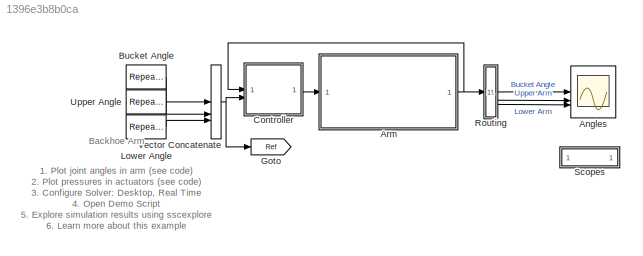
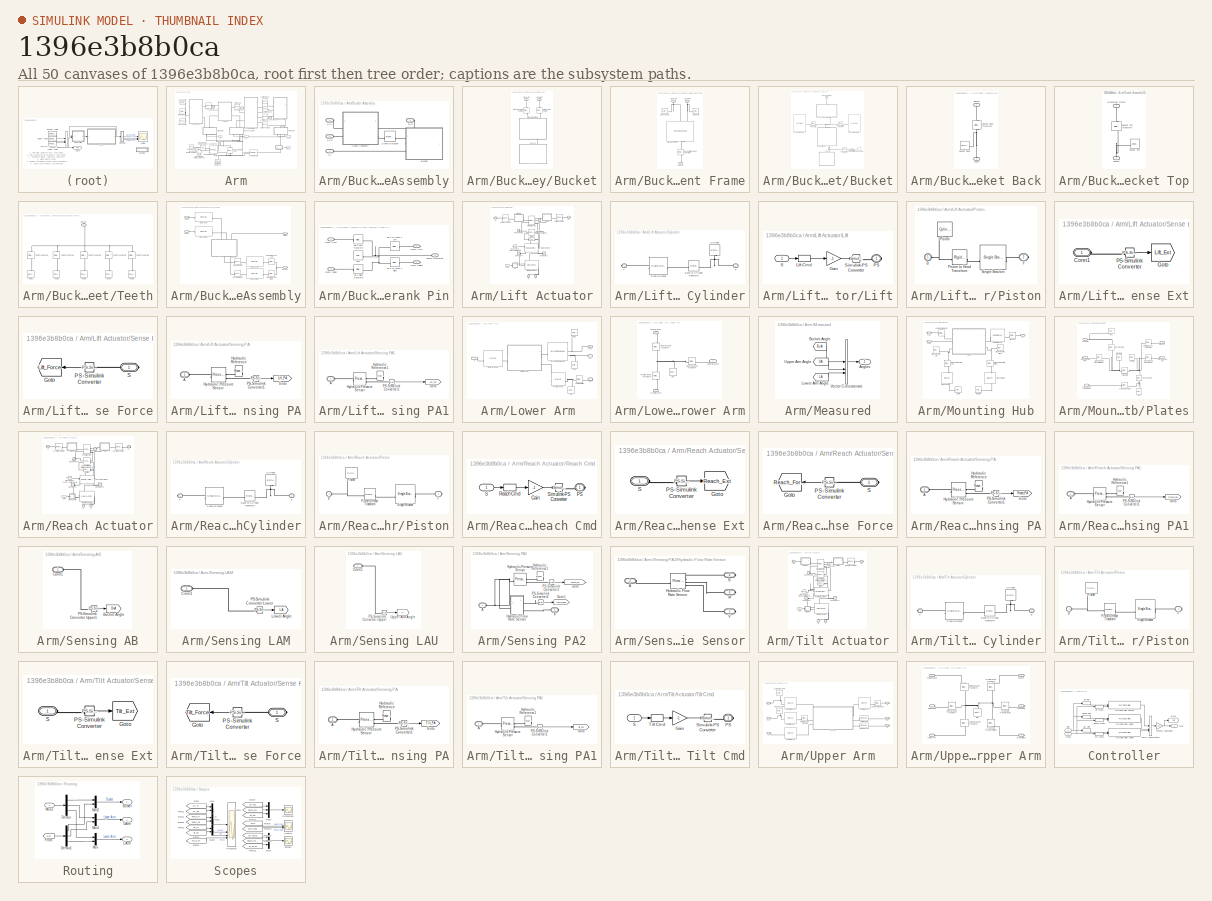
[diagram: thumbnail index - all 50 canvases of the model, root first then tree order]
MODEL slx_1396e3b8b0ca
KIND model
CONFIG EnableMultiTasking = on
CONFIG PostLoadFcn = warning off simscape:compiler:sli:init:SolverNotRecommended\n\nwarning off sm:sli:visualization:UnsupportedSimMode\nwarning off sm:sli:setup:compile:LocalSolverNotSupported\nwarning off sm:compiler:state:UnsatisfiedDesiredTarget\n\nwarning off xPCTarget:sampleTime:sampleTimeInvariance\nwarning off Simulink:blocks:MatchingFromNotFound\n
CONFIG SolverName = ode23t
CONFIG StopTime = 60
WORKSPACE source: mxarray member
WORKSPACE cylinderGray = [0.6 0.6 0.6]
WORKSPACE darkOrange = [0.8 0.5 0]
WORKSPACE glassBlue = [0.2 0.2 1]
WORKSPACE gray = [0.3 0.3 0.3]
WORKSPACE orange = [0.8 0.65 0]
WORKSPACE pistonGray = [0.4 0.4 0.4]
WORKSPACE rhoGlass = 2500
WORKSPACE rhoRubber = 1500
WORKSPACE rhoSteel = 7800
WORKSPACE tireBlack = [0.1 0.1 0.1]
WORKSPACE wheelGray = [0.6 0.6 0.6]
WORKSPACE yellow = [0.8 0.8 0]
BLOCK [Scope] Angles
  ActiveDisplayYMaximum = 20
  ActiveDisplayYMinimum = -120
  DataLoggingDecimation = 1
  DataLoggingSaveFormat = Structure With Time
  Floating = off
  GraphicalSettings = {"GraphicalSettings":{"LegacySettings":true,"Style":{"AxesScalingProperties":{"ScaleAxesLimitsAtStop":false},"Style":{"AxesColor":"[0 0 0]","BackgroundColor":"[0.501960784313725 0.501960784313725 0.501960784313725]","ChannelNames":["","",""],"ColorOrder":"[1 0.909803921568627 0.392156862745098;0.149019607843137 0.549019607843137 0.866666666666667;0.96078431372549 0.466666666666667 0.16078431372549...<+1031ch>
  LayoutDimensionsString = [3 1]
  MultipleDisplayCache = [{"MaxYLimMag":10,"MaxYLimReal":20,"MinYLimMag":0,"MinYLimReal":-120,"PlotAsMagnitudePhase":false,"ShowGrid":true,"ShowLegend":false,"Title":"%<SignalLabel>","YLabel":""},{"MaxYLimMag":10,"MaxYLimReal":60,"MinYLimMag":0,"MinYLimReal":-20,"PlotAsMagnitudePhase":false,"ShowGrid":true,"ShowLegend":false,"Title":"%<SignalLabel>","YLabel":""},{"MaxYLimMag":10,"MaxYLimReal":0,"MinYLimMag":0,"MinYLimReal...<+108ch>
  NumInputPorts = 3
  TimeSpan = 60
  WasSavedAsWebScope = on
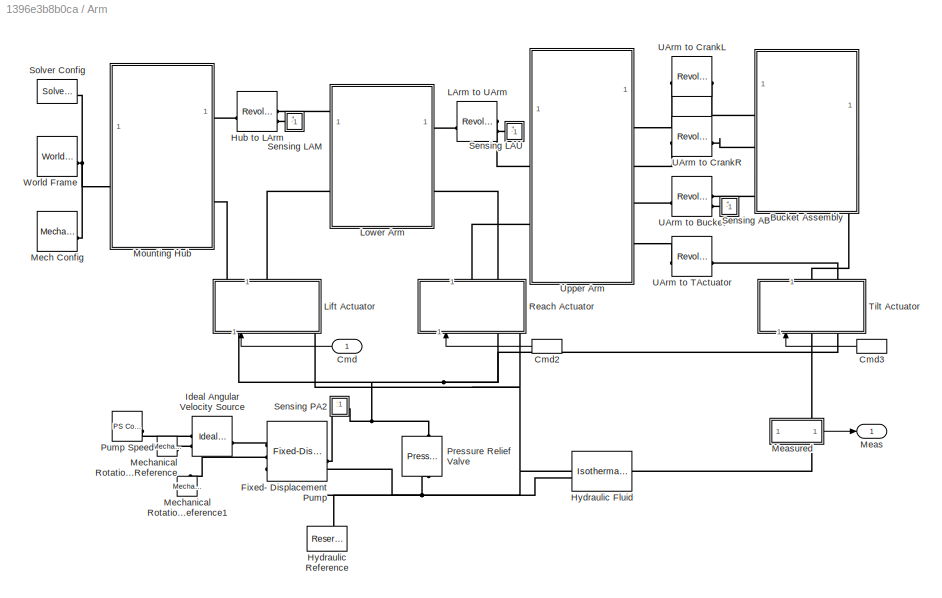
BLOCK [SubSystem] Arm
  Tag = PublishSubsystem
BLOCK [SubSystem] Arm/Bucket Assembly
BLOCK [SubSystem] Arm/Bucket Assembly/Bucket
BLOCK [Reference] Arm/Bucket Assembly/Bucket/Arm Revolute Rotation  REF=sm_lib/Frames and
Transforms/Rigid
Transform
  NameLocation = right
  SourceBlock = sm_lib/Frames and\nTransforms/Rigid\nTransform
  SourceType = Rigid\nTransform
BLOCK [SubSystem] Arm/Bucket Assembly/Bucket/Attachment Frame
  NameLocation = right
BLOCK [Reference] Arm/Bucket Assembly/Bucket/Attachment Frame/Arm Link Pin  REF=sm_lib/Body Elements/Cylindrical Solid
  SourceBlock = sm_lib/Body Elements/Cylindrical Solid
  SourceType = Cylindrical Solid
BLOCK [Reference] Arm/Bucket Assembly/Bucket/Attachment Frame/Attachment Plates  REF=Backhoe_Lib/Bracket Double Hole
  NameLocation = right
  SourceBlock = Backhoe_Lib/Bracket Double Hole
  SourceType = Bracket Double Hole
BLOCK [PMIOPort] Arm/Bucket Assembly/Bucket/Attachment Frame/Bucket
  NameLocation = left
  Port = 3
  Side = Left
BLOCK [Reference] Arm/Bucket Assembly/Bucket/Attachment Frame/Bucket Attachment Transform  REF=sm_lib/Frames and
Transforms/Rigid
Transform
  NameLocation = right
  SourceBlock = sm_lib/Frames and\nTransforms/Rigid\nTransform
  SourceType = Rigid\nTransform
BLOCK [PMIOPort] Arm/Bucket Assembly/Bucket/Attachment Frame/Crank Arm
  NameLocation = left
  Side = Right
BLOCK [Reference] Arm/Bucket Assembly/Bucket/Attachment Frame/Crank Link Pin  REF=sm_lib/Body Elements/Cylindrical Solid
  SourceBlock = sm_lib/Body Elements/Cylindrical Solid
  SourceType = Cylindrical Solid
BLOCK [PMIOPort] Arm/Bucket Assembly/Bucket/Attachment Frame/Upper Arm
  NameLocation = right
  Port = 2
  Side = Right
BLOCK [SubSystem] Arm/Bucket Assembly/Bucket/Bucket
  NameLocation = right
BLOCK [PMIOPort] Arm/Bucket Assembly/Bucket/Bucket/Attachment Frame
  NameLocation = right
  Side = Right
BLOCK [SubSystem] Arm/Bucket Assembly/Bucket/Bucket/Bucket Back
  NameLocation = right
BLOCK [PMIOPort] Arm/Bucket Assembly/Bucket/Bucket/Bucket Back/Bucket
  NameLocation = right
  Side = Right
BLOCK [Reference] Arm/Bucket Assembly/Bucket/Bucket/Bucket Back/Bucket Back  REF=sm_lib/Body Elements/Extruded Solid
  NameLocation = top
  SourceBlock = sm_lib/Body Elements/Extruded Solid
  SourceType = Extruded Solid
BLOCK [Reference] Arm/Bucket Assembly/Bucket/Bucket/Bucket Back/Bucket Back Transform  REF=sm_lib/Frames and
Transforms/Rigid
Transform
  NameLocation = left
  SourceBlock = sm_lib/Frames and\nTransforms/Rigid\nTransform
  SourceType = Rigid\nTransform
BLOCK [PMIOPort] Arm/Bucket Assembly/Bucket/Bucket/Bucket Back/Teeth
  NameLocation = right
  Port = 2
  Side = Left
BLOCK [Reference] Arm/Bucket Assembly/Bucket/Bucket/Bucket Left Transform  REF=sm_lib/Frames and
Transforms/Rigid
Transform
  NameLocation = top
  SourceBlock = sm_lib/Frames and\nTransforms/Rigid\nTransform
  SourceType = Rigid\nTransform
BLOCK [Reference] Arm/Bucket Assembly/Bucket/Bucket/Bucket Right Transform  REF=sm_lib/Frames and
Transforms/Rigid
Transform
  NameLocation = top
  SourceBlock = sm_lib/Frames and\nTransforms/Rigid\nTransform
  SourceType = Rigid\nTransform
BLOCK [Reference] Arm/Bucket Assembly/Bucket/Bucket/Bucket Side Left  REF=Backhoe_Lib/Bucket Side
  SourceBlock = Backhoe_Lib/Bucket Side
  SourceType = Bucket Side
BLOCK [Reference] Arm/Bucket Assembly/Bucket/Bucket/Bucket SideRight  REF=Backhoe_Lib/Bucket Side
  SourceBlock = Backhoe_Lib/Bucket Side
  SourceType = Bucket Side
BLOCK [SubSystem] Arm/Bucket Assembly/Bucket/Bucket/Bucket Top
  NameLocation = right
BLOCK [PMIOPort] Arm/Bucket Assembly/Bucket/Bucket/Bucket Top/Attachment Frame
  NameLocation = right
  Side = Right
BLOCK [PMIOPort] Arm/Bucket Assembly/Bucket/Bucket/Bucket Top/Bucket
  NameLocation = right
  Port = 2
  Side = Left
BLOCK [Reference] Arm/Bucket Assembly/Bucket/Bucket/Bucket Top/Bucket Top  REF=sm_lib/Body Elements/Brick Solid
  NameLocation = top
  SourceBlock = sm_lib/Body Elements/Brick Solid
  SourceType = Brick Solid
BLOCK [Reference] Arm/Bucket Assembly/Bucket/Bucket/Bucket Top/Bucket Top Transform  REF=sm_lib/Frames and
Transforms/Rigid
Transform
  NameLocation = right
  SourceBlock = sm_lib/Frames and\nTransforms/Rigid\nTransform
  SourceType = Rigid\nTransform
BLOCK [Reference] Arm/Bucket Assembly/Bucket/Bucket/General Variable Mass  REF=sm_lib/Body Elements/Variable Mass/General
Variable Mass
  Commented = on
  SourceBlock = sm_lib/Body Elements/Variable Mass/General\nVariable Mass
  SourceType = General\nVariable Mass
BLOCK [DiscretePulseGenerator] Arm/Bucket Assembly/Bucket/Bucket/Pulse Generator
  Amplitude = 10000
  Commented = on
  Period = 60
  PhaseDelay = 25
  PulseType = Time based
  PulseWidth = 35
BLOCK [Reference] Arm/Bucket Assembly/Bucket/Bucket/Simulink-PS Converter  REF=nesl_utility/Simulink-PS
Converter
  Commented = on
  SourceBlock = nesl_utility/Simulink-PS\nConverter
  SourceType = Simulink-PS\nConverter
BLOCK [SubSystem] Arm/Bucket Assembly/Bucket/Bucket/Teeth
  NameLocation = right
BLOCK [PMIOPort] Arm/Bucket Assembly/Bucket/Bucket/Teeth/Bucket
  NameLocation = right
  Side = Right
BLOCK [Reference] Arm/Bucket Assembly/Bucket/Bucket/Teeth/Tooth 1  REF=sm_lib/Body Elements/Extruded Solid
  NameLocation = left
  SourceBlock = sm_lib/Body Elements/Extruded Solid
  SourceType = Extruded Solid
BLOCK [Reference] Arm/Bucket Assembly/Bucket/Bucket/Teeth/Tooth 2  REF=sm_lib/Body Elements/Extruded Solid
  NameLocation = left
  SourceBlock = sm_lib/Body Elements/Extruded Solid
  SourceType = Extruded Solid
BLOCK [Reference] Arm/Bucket Assembly/Bucket/Bucket/Teeth/Tooth 3  REF=sm_lib/Body Elements/Extruded Solid
  NameLocation = left
  SourceBlock = sm_lib/Body Elements/Extruded Solid
  SourceType = Extruded Solid
BLOCK [Reference] Arm/Bucket Assembly/Bucket/Bucket/Teeth/Tooth 4  REF=sm_lib/Body Elements/Extruded Solid
  NameLocation = left
  SourceBlock = sm_lib/Body Elements/Extruded Solid
  SourceType = Extruded Solid
BLOCK [Reference] Arm/Bucket Assembly/Bucket/Bucket/Teeth/Tooth 5  REF=sm_lib/Body Elements/Extruded Solid
  NameLocation = left
  SourceBlock = sm_lib/Body Elements/Extruded Solid
  SourceType = Extruded Solid
BLOCK [Reference] Arm/Bucket Assembly/Bucket/Bucket/Teeth/Tooth Transform 1  REF=sm_lib/Frames and
Transforms/Rigid
Transform
  NameLocation = left
  SourceBlock = sm_lib/Frames and\nTransforms/Rigid\nTransform
  SourceType = Rigid\nTransform
BLOCK [Reference] Arm/Bucket Assembly/Bucket/Bucket/Teeth/Tooth Transform 2  REF=sm_lib/Frames and
Transforms/Rigid
Transform
  NameLocation = left
  SourceBlock = sm_lib/Frames and\nTransforms/Rigid\nTransform
  SourceType = Rigid\nTransform
BLOCK [Reference] Arm/Bucket Assembly/Bucket/Bucket/Teeth/Tooth Transform 3  REF=sm_lib/Frames and
Transforms/Rigid
Transform
  NameLocation = left
  SourceBlock = sm_lib/Frames and\nTransforms/Rigid\nTransform
  SourceType = Rigid\nTransform
BLOCK [Reference] Arm/Bucket Assembly/Bucket/Bucket/Teeth/Tooth Transform 4  REF=sm_lib/Frames and
Transforms/Rigid
Transform
  NameLocation = left
  SourceBlock = sm_lib/Frames and\nTransforms/Rigid\nTransform
  SourceType = Rigid\nTransform
BLOCK [Reference] Arm/Bucket Assembly/Bucket/Bucket/Teeth/Tooth Transform 5  REF=sm_lib/Frames and
Transforms/Rigid
Transform
  NameLocation = left
  SourceBlock = sm_lib/Frames and\nTransforms/Rigid\nTransform
  SourceType = Rigid\nTransform
BLOCK [PMIOPort] Arm/Bucket Assembly/Bucket/Crank Arm
  NameLocation = left
  Side = Right
BLOCK [Reference] Arm/Bucket Assembly/Bucket/Crank Revolute Rotation  REF=sm_lib/Frames and
Transforms/Rigid
Transform
  NameLocation = left
  SourceBlock = sm_lib/Frames and\nTransforms/Rigid\nTransform
  SourceType = Rigid\nTransform
BLOCK [PMIOPort] Arm/Bucket Assembly/Bucket/Upper Arm
  NameLocation = right
  Port = 2
  Side = Right
BLOCK [SubSystem] Arm/Bucket Assembly/Crank Assembly
BLOCK [PMIOPort] Arm/Bucket Assembly/Crank Assembly/Arm Left
  Side = Left
BLOCK [PMIOPort] Arm/Bucket Assembly/Crank Assembly/Arm Right
  NameLocation = top
  Port = 2
  Side = Left
BLOCK [PMIOPort] Arm/Bucket Assembly/Crank Assembly/Bucket
  Port = 4
  Side = Right
BLOCK [Reference] Arm/Bucket Assembly/Crank Assembly/Crank 1 Left  REF=Backhoe_Lib/Crank Arm
  NameLocation = top
  SourceBlock = Backhoe_Lib/Crank Arm
  SourceType = Crank Arm
BLOCK [Reference] Arm/Bucket Assembly/Crank Assembly/Crank 1 Right  REF=Backhoe_Lib/Crank Arm
  SourceBlock = Backhoe_Lib/Crank Arm
  SourceType = Crank Arm
BLOCK [Reference] Arm/Bucket Assembly/Crank Assembly/Crank 2 Left  REF=Backhoe_Lib/Crank Arm
  NameLocation = top
  SourceBlock = Backhoe_Lib/Crank Arm
  SourceType = Crank Arm
BLOCK [Reference] Arm/Bucket Assembly/Crank Assembly/Crank 2 Right  REF=Backhoe_Lib/Crank Arm
  SourceBlock = Backhoe_Lib/Crank Arm
  SourceType = Crank Arm
BLOCK [SubSystem] Arm/Bucket Assembly/Crank Assembly/Crank Pin
  NameLocation = right
BLOCK [PMIOPort] Arm/Bucket Assembly/Crank Assembly/Crank Pin/Crank 1 Left
  NameLocation = top
  Side = Left
BLOCK [PMIOPort] Arm/Bucket Assembly/Crank Assembly/Crank Pin/Crank 1 Right
  NameLocation = top
  Port = 2
  Side = Left
BLOCK [PMIOPort] Arm/Bucket Assembly/Crank Assembly/Crank Pin/Crank 2 Left
  Port = 3
  Side = Right
BLOCK [PMIOPort] Arm/Bucket Assembly/Crank Assembly/Crank Pin/Crank 2 Right
  Port = 4
  Side = Right
BLOCK [Reference] Arm/Bucket Assembly/Crank Assembly/Crank Pin/Pin 2 Left Transform  REF=sm_lib/Frames and
Transforms/Rigid
Transform
  NameLocation = top
  SourceBlock = sm_lib/Frames and\nTransforms/Rigid\nTransform
  SourceType = Rigid\nTransform
BLOCK [Reference] Arm/Bucket Assembly/Crank Assembly/Crank Pin/Pin 2 Right Transform  REF=sm_lib/Frames and
Transforms/Rigid
Transform
  SourceBlock = sm_lib/Frames and\nTransforms/Rigid\nTransform
  SourceType = Rigid\nTransform
BLOCK [Reference] Arm/Bucket Assembly/Crank Assembly/Crank Pin/Pin 2 to Crank 2 Left  REF=sm_lib/Frames and
Transforms/Rigid
Transform
  NameLocation = top
  SourceBlock = sm_lib/Frames and\nTransforms/Rigid\nTransform
  SourceType = Rigid\nTransform
BLOCK [Reference] Arm/Bucket Assembly/Crank Assembly/Crank Pin/Pin 2 to Crank 2 Right  REF=sm_lib/Frames and
Transforms/Rigid
Transform
  SourceBlock = sm_lib/Frames and\nTransforms/Rigid\nTransform
  SourceType = Rigid\nTransform
BLOCK [Reference] Arm/Bucket Assembly/Crank Assembly/Crank Pin/Pin2  REF=sm_lib/Body Elements/Cylindrical Solid
  NameLocation = top
  SourceBlock = sm_lib/Body Elements/Cylindrical Solid
  SourceType = Cylindrical Solid
BLOCK [PMIOPort] Arm/Bucket Assembly/Crank Assembly/Crank Pin/Piston Attachment
  Port = 5
  Side = Left
BLOCK [Reference] Arm/Bucket Assembly/Crank Assembly/Crank to Bucket Left  REF=sm_lib/Frames and
Transforms/Rigid
Transform
  NameLocation = top
  SourceBlock = sm_lib/Frames and\nTransforms/Rigid\nTransform
  SourceType = Rigid\nTransform
BLOCK [Reference] Arm/Bucket Assembly/Crank Assembly/Crank to Bucket Right  REF=sm_lib/Frames and
Transforms/Rigid
Transform
  SourceBlock = sm_lib/Frames and\nTransforms/Rigid\nTransform
  SourceType = Rigid\nTransform
BLOCK [PMIOPort] Arm/Bucket Assembly/Crank Assembly/Piston
  Port = 3
  Side = Right
BLOCK [Reference] Arm/Bucket Assembly/Crank Assembly/Revolute Left 2  REF=sm_lib/Joints/Revolute Joint
  SourceBlock = sm_lib/Joints/Revolute Joint
  SourceType = Revolute Joint
BLOCK [Reference] Arm/Bucket Assembly/Crank Assembly/Revolute Right 2  REF=sm_lib/Joints/Revolute Joint
  SourceBlock = sm_lib/Joints/Revolute Joint
  SourceType = Revolute Joint
BLOCK [Reference] Arm/Bucket Assembly/Crank to Bucket  REF=sm_lib/Joints/Revolute Joint
  SourceBlock = sm_lib/Joints/Revolute Joint
  SourceType = Revolute Joint
BLOCK [PMIOPort] Arm/Bucket Assembly/TAct
  NameLocation = top
  Side = Right
BLOCK [PMIOPort] Arm/Bucket Assembly/UA
  Port = 4
  Side = Left
BLOCK [PMIOPort] Arm/Bucket Assembly/UAL
  Port = 2
  Side = Left
BLOCK [PMIOPort] Arm/Bucket Assembly/UAR
  Port = 3
  Side = Left
BLOCK [Inport] Arm/Cmd
  NameLocation = top
BLOCK [InportShadow] Arm/Cmd2
  NameLocation = top
BLOCK [InportShadow] Arm/Cmd3
BLOCK [Reference] Arm/Fixed- Displacement Pump  REF=SimscapeFluids_lib/Isothermal Liquid/Pumps & Motors/Fixed-Displacement
Pump (IL)
  LibrarySourceBlock = sh_lib/Pumps and Motors/Fixed-Displacement\nPump
  NameLocation = right
  SourceBlock = SimscapeFluids_lib/Isothermal Liquid/Pumps & Motors/Fixed-Displacement\nPump (IL)
  SourceType = Fixed-Displacement\nPump (IL)
BLOCK [Reference] Arm/Hub to LArm  REF=sm_lib/Joints/Revolute Joint
  SourceBlock = sm_lib/Joints/Revolute Joint
  SourceType = Revolute Joint
BLOCK [Reference] Arm/Hydraulic Fluid  REF=fl_lib/Isothermal Liquid/Utilities/Isothermal Liquid
Properties (IL)
  LibrarySourceBlock = sh_lib/Hydraulic Utilities/Hydraulic Fluid
  SourceBlock = fl_lib/Isothermal Liquid/Utilities/Isothermal Liquid\nProperties (IL)
  SourceType = Isothermal Liquid\nProperties (IL)
BLOCK [Reference] Arm/Hydraulic Reference  REF=fl_lib/Isothermal Liquid/Elements/Reservoir (IL)
  LibrarySourceBlock = fl_lib/Hydraulic/Hydraulic Elements/Hydraulic Reference
  NameLocation = right
  SourceBlock = fl_lib/Isothermal Liquid/Elements/Reservoir (IL)
  SourceType = Reservoir (IL)
BLOCK [Reference] Arm/Ideal Angular Velocity Source  REF=fl_lib/Mechanical/Mechanical Sources/Ideal Angular
Velocity Source
  SourceBlock = fl_lib/Mechanical/Mechanical Sources/Ideal Angular\nVelocity Source
  SourceType = Ideal Angular\nVelocity Source
BLOCK [Reference] Arm/LArm to UArm  REF=sm_lib/Joints/Revolute Joint
  SourceBlock = sm_lib/Joints/Revolute Joint
  SourceType = Revolute Joint
BLOCK [SubSystem] Arm/Lift Actuator
  NameLocation = left
  Tag = PublishSubsystem
BLOCK [Inport] Arm/Lift Actuator/Cmd
BLOCK [SubSystem] Arm/Lift Actuator/Cylinder
BLOCK [PMIOPort] Arm/Lift Actuator/Cylinder/B
  NameLocation = top
  Port = 2
  Side = Left
BLOCK [Reference] Arm/Lift Actuator/Cylinder/Base to Cylinder Transform  REF=sm_lib/Frames and
Transforms/Rigid
Transform
  SourceBlock = sm_lib/Frames and\nTransforms/Rigid\nTransform
  SourceType = Rigid\nTransform
BLOCK [Reference] Arm/Lift Actuator/Cylinder/Cylinder  REF=sm_lib/Body Elements/Extruded Solid
  NameLocation = left
  SourceBlock = sm_lib/Body Elements/Extruded Solid
  SourceType = Extruded Solid
BLOCK [PMIOPort] Arm/Lift Actuator/Cylinder/F
  NameLocation = top
  Side = Right
BLOCK [Reference] Arm/Lift Actuator/Cylinder/Single Bracket  REF=Backhoe_Lib/Single Bracket
  NameLocation = top
  SourceBlock = Backhoe_Lib/Single Bracket
  SourceType = Single Bracket
BLOCK [Reference] Arm/Lift Actuator/Directional Valve  REF=SimscapeFluids_lib/Isothermal Liquid/Valves & Orifices/Directional Control
Valves/4-Way 3-Position
Directional Valve
(IL)
  LibrarySourceBlock = sh_lib/Valves/Directional Valves/4-Way Directional\nValve
  NameLocation = right
  SourceBlock = SimscapeFluids_lib/Isothermal Liquid/Valves & Orifices/Directional Control\nValves/4-Way 3-Position\nDirectional Valve\n(IL)
  SourceType = 4-Way 3-Position\nDirectional Valve\n(IL)
  Tag = Factory Generic
BLOCK [Reference] Arm/Lift Actuator/Friction  REF=fl_lib/Mechanical/Translational
Elements/Translational
Friction
  SourceBlock = fl_lib/Mechanical/Translational\nElements/Translational\nFriction
  SourceType = Translational\nFriction
BLOCK [PMIOPort] Arm/Lift Actuator/H
  NameLocation = top
  Port = 4
  Side = Right
BLOCK [Reference] Arm/Lift Actuator/Hub to LActuator  REF=sm_lib/Joints/Revolute Joint
  SourceBlock = sm_lib/Joints/Revolute Joint
  SourceType = Revolute Joint
BLOCK [Reference] Arm/Lift Actuator/Hydraulic Cylinder  REF=SimscapeFluids_lib/Isothermal Liquid/Actuators/Double-Acting
Actuator (IL)
  LibrarySourceBlock = sh_lib/Hydraulic Cylinders/Double-Acting\nHydraulic Cylinder
  SourceBlock = SimscapeFluids_lib/Isothermal Liquid/Actuators/Double-Acting\nActuator (IL)
  SourceType = Double-Acting\nActuator (IL)
  Tag = Factory Generic
BLOCK [PMIOPort] Arm/Lift Actuator/LA
  NameLocation = top
  Port = 3
  Side = Right
BLOCK [Reference] Arm/Lift Actuator/LArm to LActuator  REF=sm_lib/Joints/Revolute Joint
  SourceBlock = sm_lib/Joints/Revolute Joint
  SourceType = Revolute Joint
BLOCK [SubSystem] Arm/Lift Actuator/Lift
BLOCK [Gain] Arm/Lift Actuator/Lift/Gain
  Gain = -1
BLOCK [Selector] Arm/Lift Actuator/Lift/Lift Cmd
  IndexOptions = Index vector (dialog)
  Indices = 3
  InputPortWidth = 3
  OutputSizes = 1
BLOCK [PMIOPort] Arm/Lift Actuator/Lift/PS
  Side = Right
BLOCK [Inport] Arm/Lift Actuator/Lift/S
BLOCK [Reference] Arm/Lift Actuator/Lift/Simulink-PS Converter  REF=nesl_utility/Simulink-PS
Converter
  SourceBlock = nesl_utility/Simulink-PS\nConverter
  SourceType = Simulink-PS\nConverter
BLOCK [Reference] Arm/Lift Actuator/Mechanical Translational Reference  REF=fl_lib/Mechanical/Translational
Elements/Mechanical
Translational
Reference
  SourceBlock = fl_lib/Mechanical/Translational\nElements/Mechanical\nTranslational\nReference
  SourceType = Mechanical\nTranslational\nReference
  Tag = Factory Generic
BLOCK [PMIOPort] Arm/Lift Actuator/P
  NameLocation = left
  Port = 2
  Side = Left
BLOCK [SubSystem] Arm/Lift Actuator/Piston
BLOCK [PMIOPort] Arm/Lift Actuator/Piston/B
  NameLocation = top
  Side = Left
BLOCK [PMIOPort] Arm/Lift Actuator/Piston/F
  NameLocation = top
  Port = 2
  Side = Right
BLOCK [Reference] Arm/Lift Actuator/Piston/Piston  REF=sm_lib/Body Elements/Cylindrical Solid
  NameLocation = left
  SourceBlock = sm_lib/Body Elements/Cylindrical Solid
  SourceType = Cylindrical Solid
BLOCK [Reference] Arm/Lift Actuator/Piston/Piston to Head Transform  REF=sm_lib/Frames and
Transforms/Rigid
Transform
  SourceBlock = sm_lib/Frames and\nTransforms/Rigid\nTransform
  SourceType = Rigid\nTransform
BLOCK [Reference] Arm/Lift Actuator/Piston/Single Bracket  REF=Backhoe_Lib/Single Bracket
  SourceBlock = Backhoe_Lib/Single Bracket
  SourceType = Single Bracket
BLOCK [Reference] Arm/Lift Actuator/Prismatic  Joint  REF=sm_lib/Joints/Prismatic
Joint
  SourceBlock = sm_lib/Joints/Prismatic\nJoint
  SourceType = Prismatic\nJoint
BLOCK [SubSystem] Arm/Lift Actuator/Sense Ext
BLOCK [PMIOPort] Arm/Lift Actuator/Sense Ext/Conn1
  Side = Left
BLOCK [Goto] Arm/Lift Actuator/Sense Ext/Goto
  GotoTag = Lift_Ext
  TagVisibility = global
BLOCK [Reference] Arm/Lift Actuator/Sense Ext/PS-Simulink Converter  REF=nesl_utility/PS-Simulink
Converter
  SourceBlock = nesl_utility/PS-Simulink\nConverter
  SourceType = PS-Simulink\nConverter
BLOCK [SubSystem] Arm/Lift Actuator/Sense Force
BLOCK [Goto] Arm/Lift Actuator/Sense Force/Goto
  GotoTag = Lift_Force
  TagVisibility = global
BLOCK [Reference] Arm/Lift Actuator/Sense Force/PS-Simulink Converter  REF=nesl_utility/PS-Simulink
Converter
  NameLocation = top
  SourceBlock = nesl_utility/PS-Simulink\nConverter
  SourceType = PS-Simulink\nConverter
BLOCK [PMIOPort] Arm/Lift Actuator/Sense Force/S
  Side = Right
BLOCK [SubSystem] Arm/Lift Actuator/Sensing PA
BLOCK [PMIOPort] Arm/Lift Actuator/Sensing PA/A
  Side = Left
BLOCK [Goto] Arm/Lift Actuator/Sensing PA/Goto
  GotoTag = Lift_PA
  TagVisibility = global
BLOCK [Reference] Arm/Lift Actuator/Sensing PA/Hydraulic Pressure Sensor  REF=fl_lib/Isothermal Liquid/Sensors/Pressure Sensor (IL)
  LibrarySourceBlock = fl_lib/Hydraulic/Hydraulic Sensors/Hydraulic Pressure\nSensor
  SourceBlock = fl_lib/Isothermal Liquid/Sensors/Pressure Sensor (IL)
  SourceType = Pressure Sensor (IL)
BLOCK [Reference] Arm/Lift Actuator/Sensing PA/Hydraulic Reference  REF=fl_lib/Isothermal Liquid/Elements/Reservoir (IL)
  LibrarySourceBlock = fl_lib/Hydraulic/Hydraulic Elements/Hydraulic Reference
  NameLocation = top
  SourceBlock = fl_lib/Isothermal Liquid/Elements/Reservoir (IL)
  SourceType = Reservoir (IL)
BLOCK [Reference] Arm/Lift Actuator/Sensing PA/PS-Simulink Converter1  REF=nesl_utility/PS-Simulink
Converter
  SourceBlock = nesl_utility/PS-Simulink\nConverter
  SourceType = PS-Simulink\nConverter
BLOCK [SubSystem] Arm/Lift Actuator/Sensing PA1
  NameLocation = top
BLOCK [PMIOPort] Arm/Lift Actuator/Sensing PA1/A
  Side = Left
BLOCK [Goto] Arm/Lift Actuator/Sensing PA1/Goto
  GotoTag = Lift_PB
  TagVisibility = global
BLOCK [Reference] Arm/Lift Actuator/Sensing PA1/Hydraulic Pressure Sensor  REF=fl_lib/Isothermal Liquid/Sensors/Pressure Sensor (IL)
  LibrarySourceBlock = fl_lib/Hydraulic/Hydraulic Sensors/Hydraulic Pressure\nSensor
  SourceBlock = fl_lib/Isothermal Liquid/Sensors/Pressure Sensor (IL)
  SourceType = Pressure Sensor (IL)
BLOCK [Reference] Arm/Lift Actuator/Sensing PA1/Hydraulic Reference1  REF=fl_lib/Isothermal Liquid/Elements/Reservoir (IL)
  LibrarySourceBlock = fl_lib/Hydraulic/Hydraulic Elements/Hydraulic Reference
  NameLocation = top
  SourceBlock = fl_lib/Isothermal Liquid/Elements/Reservoir (IL)
  SourceType = Reservoir (IL)
BLOCK [Reference] Arm/Lift Actuator/Sensing PA1/PS-Simulink Converter1  REF=nesl_utility/PS-Simulink
Converter
  SourceBlock = nesl_utility/PS-Simulink\nConverter
  SourceType = PS-Simulink\nConverter
BLOCK [PMIOPort] Arm/Lift Actuator/T
  NameLocation = right
  Side = Left
BLOCK [Reference] Arm/Lift Actuator/Translational Multibody Interface  REF=fl_lib/Mechanical/Multibody Interfaces/Translational
Multibody Interface
  SourceBlock = fl_lib/Mechanical/Multibody Interfaces/Translational\nMultibody Interface
  SourceType = Translational\nMultibody Interface
BLOCK [SubSystem] Arm/Lower Arm 
BLOCK [Reference] Arm/Lower Arm /Angle Rotation  REF=sm_lib/Frames and
Transforms/Rigid
Transform
  SourceBlock = sm_lib/Frames and\nTransforms/Rigid\nTransform
  SourceType = Rigid\nTransform
BLOCK [Reference] Arm/Lower Arm /Bracket Double Hole  REF=Backhoe_Lib/Bracket Double Hole
  NameLocation = top
  SourceBlock = Backhoe_Lib/Bracket Double Hole
  SourceType = Bracket Double Hole
BLOCK [Reference] Arm/Lower Arm /Front Bracket  REF=Backhoe_Lib/Bracket
  NameLocation = top
  SourceBlock = Backhoe_Lib/Bracket
  SourceType = Bracket
BLOCK [PMIOPort] Arm/Lower Arm /H
  NameLocation = top
  Side = Left
BLOCK [PMIOPort] Arm/Lower Arm /LAct
  Port = 2
  Side = Left
BLOCK [SubSystem] Arm/Lower Arm /Lower Arm
BLOCK [Reference] Arm/Lower Arm /Lower Arm/Bar  REF=sm_lib/Body Elements/Extruded Solid
  NameLocation = right
  SourceBlock = sm_lib/Body Elements/Extruded Solid
  SourceType = Extruded Solid
BLOCK [PMIOPort] Arm/Lower Arm /Lower Arm/Front Bracket
  NameLocation = left
  Port = 3
  Side = Left
BLOCK [Reference] Arm/Lower Arm /Lower Arm/Front Bracket Transform  REF=sm_lib/Frames and
Transforms/Rigid
Transform
  NameLocation = left
  SourceBlock = sm_lib/Frames and\nTransforms/Rigid\nTransform
  SourceType = Rigid\nTransform
BLOCK [PMIOPort] Arm/Lower Arm /Lower Arm/Rear Bracket
  NameLocation = left
  Side = Right
BLOCK [Reference] Arm/Lower Arm /Lower Arm/Rear Bracket Transform  REF=sm_lib/Frames and
Transforms/Rigid
Transform
  NameLocation = left
  SourceBlock = sm_lib/Frames and\nTransforms/Rigid\nTransform
  SourceType = Rigid\nTransform
BLOCK [PMIOPort] Arm/Lower Arm /Lower Arm/Upper Bracket
  Port = 2
  Side = Left
BLOCK [Reference] Arm/Lower Arm /Lower Arm/Upper Bracket Transform  REF=sm_lib/Frames and
Transforms/Rigid
Transform
  SourceBlock = sm_lib/Frames and\nTransforms/Rigid\nTransform
  SourceType = Rigid\nTransform
BLOCK [Reference] Arm/Lower Arm /Pin  REF=sm_lib/Body Elements/Cylindrical Solid
  NameLocation = right
  SourceBlock = sm_lib/Body Elements/Cylindrical Solid
  SourceType = Cylindrical Solid
BLOCK [Reference] Arm/Lower Arm /Pin1  REF=sm_lib/Body Elements/Cylindrical Solid
  NameLocation = left
  SourceBlock = sm_lib/Body Elements/Cylindrical Solid
  SourceType = Cylindrical Solid
BLOCK [Reference] Arm/Lower Arm /Pin2  REF=sm_lib/Body Elements/Cylindrical Solid
  NameLocation = left
  SourceBlock = sm_lib/Body Elements/Cylindrical Solid
  SourceType = Cylindrical Solid
BLOCK [PMIOPort] Arm/Lower Arm /RAct
  NameLocation = top
  Port = 4
  Side = Right
BLOCK [Reference] Arm/Lower Arm /Rear Bracket  REF=Backhoe_Lib/Bracket
  NameLocation = top
  SourceBlock = Backhoe_Lib/Bracket
  SourceType = Bracket
BLOCK [PMIOPort] Arm/Lower Arm /UA
  NameLocation = top
  Port = 3
  Side = Right
BLOCK [Outport] Arm/Meas
  VectorParamsAs1DForOutWhenUnconnected = off
BLOCK [SubSystem] Arm/Measured
BLOCK [Outport] Arm/Measured/Angles
  VectorParamsAs1DForOutWhenUnconnected = off
BLOCK [From] Arm/Measured/Bucket Angle
  GotoTag = BuA
  TagVisibility = global
BLOCK [From] Arm/Measured/Lower Arm Angle
  GotoTag = LA
  TagVisibility = global
BLOCK [From] Arm/Measured/Upper Arm Angle
  GotoTag = UA
  TagVisibility = global
BLOCK [Concatenate] Arm/Measured/Vector Concatenate
  NameLocation = top
  NumInputs = 3
BLOCK [Reference] Arm/Mech Config  REF=sm_lib/Utilities/Mechanism
Configuration
  SourceBlock = sm_lib/Utilities/Mechanism\nConfiguration
  SourceType = Mechanism\nConfiguration
BLOCK [Reference] Arm/Mechanical Rotational Reference  REF=fl_lib/Mechanical/Rotational Elements/Mechanical
Rotational Reference
  SourceBlock = fl_lib/Mechanical/Rotational Elements/Mechanical\nRotational Reference
  SourceType = Mechanical\nRotational Reference
BLOCK [Reference] Arm/Mechanical Rotational Reference1  REF=fl_lib/Mechanical/Rotational Elements/Mechanical
Rotational Reference
  NameLocation = right
  SourceBlock = fl_lib/Mechanical/Rotational Elements/Mechanical\nRotational Reference
  SourceType = Mechanical\nRotational Reference
BLOCK [SubSystem] Arm/Mounting Hub
  NameLocation = top
BLOCK [Reference] Arm/Mounting Hub/Alignment  REF=sm_lib/Frames and
Transforms/Rigid
Transform
  NameLocation = top
  SourceBlock = sm_lib/Frames and\nTransforms/Rigid\nTransform
  SourceType = Rigid\nTransform
BLOCK [Reference] Arm/Mounting Hub/Angle Realignment  REF=sm_lib/Frames and
Transforms/Rigid
Transform
  SourceBlock = sm_lib/Frames and\nTransforms/Rigid\nTransform
  SourceType = Rigid\nTransform
BLOCK [Reference] Arm/Mounting Hub/Attachment Arm Left  REF=sm_lib/Body Elements/Brick Solid
  SourceBlock = sm_lib/Body Elements/Brick Solid
  SourceType = Brick Solid
BLOCK [Reference] Arm/Mounting Hub/Attachment Arm Right  REF=sm_lib/Body Elements/Brick Solid
  SourceBlock = sm_lib/Body Elements/Brick Solid
  SourceType = Brick Solid
BLOCK [PMIOPort] Arm/Mounting Hub/B
  Port = 3
  Side = Left
BLOCK [Reference] Arm/Mounting Hub/Bracket Left  REF=Backhoe_Lib/Bracket
  NameLocation = left
  SourceBlock = Backhoe_Lib/Bracket
  SourceType = Bracket
BLOCK [Reference] Arm/Mounting Hub/Bracket Right  REF=Backhoe_Lib/Bracket
  NameLocation = right
  SourceBlock = Backhoe_Lib/Bracket
  SourceType = Bracket
BLOCK [Reference] Arm/Mounting Hub/Bracket Transform Left  REF=sm_lib/Frames and
Transforms/Rigid
Transform
  NameLocation = left
  SourceBlock = sm_lib/Frames and\nTransforms/Rigid\nTransform
  SourceType = Rigid\nTransform
BLOCK [Reference] Arm/Mounting Hub/Bracket Transform Right  REF=sm_lib/Frames and
Transforms/Rigid
Transform
  NameLocation = right
  SourceBlock = sm_lib/Frames and\nTransforms/Rigid\nTransform
  SourceType = Rigid\nTransform
BLOCK [PMIOPort] Arm/Mounting Hub/LAct
  Port = 2
  Side = Right
BLOCK [PMIOPort] Arm/Mounting Hub/LArm
  Side = Right
BLOCK [Reference] Arm/Mounting Hub/Left Pin  REF=sm_lib/Body Elements/Cylindrical Solid
  NameLocation = top
  SourceBlock = sm_lib/Body Elements/Cylindrical Solid
  SourceType = Cylindrical Solid
BLOCK [SubSystem] Arm/Mounting Hub/Plates
  NameLocation = top
BLOCK [PMIOPort] Arm/Mounting Hub/Plates/Attachment Arm Left
  Port = 4
  Side = Left
BLOCK [PMIOPort] Arm/Mounting Hub/Plates/Attachment Arm Right
  Port = 5
  Side = Right
BLOCK [Reference] Arm/Mounting Hub/Plates/Attachment Arm Transform Left  REF=sm_lib/Frames and
Transforms/Rigid
Transform
  SourceBlock = sm_lib/Frames and\nTransforms/Rigid\nTransform
  SourceType = Rigid\nTransform
BLOCK [Reference] Arm/Mounting Hub/Plates/Attachment Arm Transform Right  REF=sm_lib/Frames and
Transforms/Rigid
Transform
  SourceBlock = sm_lib/Frames and\nTransforms/Rigid\nTransform
  SourceType = Rigid\nTransform
BLOCK [PMIOPort] Arm/Mounting Hub/Plates/Bracket
  Port = 3
  Side = Right
BLOCK [PMIOPort] Arm/Mounting Hub/Plates/Cylinder Base [Lower Joint]
  Port = 2
  Side = Left
BLOCK [Reference] Arm/Mounting Hub/Plates/Cylinder Transform  REF=sm_lib/Frames and
Transforms/Rigid
Transform
  SourceBlock = sm_lib/Frames and\nTransforms/Rigid\nTransform
  SourceType = Rigid\nTransform
BLOCK [Reference] Arm/Mounting Hub/Plates/Left Plate  REF=sm_lib/Body Elements/Extruded Solid
  NameLocation = top
  SourceBlock = sm_lib/Body Elements/Extruded Solid
  SourceType = Extruded Solid
BLOCK [PMIOPort] Arm/Mounting Hub/Plates/Lower Arm
  NameLocation = top
  Side = Left
BLOCK [Reference] Arm/Mounting Hub/Plates/Pin 1  REF=sm_lib/Body Elements/Cylindrical Solid
  NameLocation = left
  SourceBlock = sm_lib/Body Elements/Cylindrical Solid
  SourceType = Cylindrical Solid
BLOCK [Reference] Arm/Mounting Hub/Plates/Pin 1 Transform  REF=sm_lib/Frames and
Transforms/Rigid
Transform
  NameLocation = left
  SourceBlock = sm_lib/Frames and\nTransforms/Rigid\nTransform
  SourceType = Rigid\nTransform
BLOCK [Reference] Arm/Mounting Hub/Plates/Pin 2  REF=sm_lib/Body Elements/Cylindrical Solid
  NameLocation = right
  SourceBlock = sm_lib/Body Elements/Cylindrical Solid
  SourceType = Cylindrical Solid
BLOCK [Reference] Arm/Mounting Hub/Plates/Pin 2 Transform  REF=sm_lib/Frames and
Transforms/Rigid
Transform
  NameLocation = right
  SourceBlock = sm_lib/Frames and\nTransforms/Rigid\nTransform
  SourceType = Rigid\nTransform
BLOCK [Reference] Arm/Mounting Hub/Plates/Plate-to-Bracket Transform  REF=sm_lib/Frames and
Transforms/Rigid
Transform
  SourceBlock = sm_lib/Frames and\nTransforms/Rigid\nTransform
  SourceType = Rigid\nTransform
BLOCK [Reference] Arm/Mounting Hub/Plates/Plate-to-Plate Transform  REF=sm_lib/Frames and
Transforms/Rigid
Transform
  NameLocation = top
  SourceBlock = sm_lib/Frames and\nTransforms/Rigid\nTransform
  SourceType = Rigid\nTransform
BLOCK [Reference] Arm/Mounting Hub/Plates/Right Plate  REF=sm_lib/Body Elements/Extruded Solid
  NameLocation = top
  SourceBlock = sm_lib/Body Elements/Extruded Solid
  SourceType = Extruded Solid
BLOCK [Reference] Arm/Mounting Hub/Right Pin  REF=sm_lib/Body Elements/Cylindrical Solid
  NameLocation = top
  SourceBlock = sm_lib/Body Elements/Cylindrical Solid
  SourceType = Cylindrical Solid
BLOCK [Reference] Arm/Mounting Hub/Single Bracket  REF=Backhoe_Lib/Single Bracket
  SourceBlock = Backhoe_Lib/Single Bracket
  SourceType = Single Bracket
BLOCK [Reference] Arm/Pressure Relief Valve  REF=SimscapeFluids_lib/Isothermal Liquid/Valves & Orifices/Pressure Control
Valves/Pressure Relief
Valve (IL)
  LibrarySourceBlock = sh_lib/Valves/Pressure Control\nValves/Pressure Relief\nValve
  NameLocation = right
  SourceBlock = SimscapeFluids_lib/Isothermal Liquid/Valves & Orifices/Pressure Control\nValves/Pressure Relief\nValve (IL)
  SourceType = Pressure Relief\nValve (IL)
BLOCK [Reference] Arm/Pump Speed  REF=fl_lib/Physical Signals/Sources/PS Constant
  SourceBlock = fl_lib/Physical Signals/Sources/PS Constant
  SourceType = PS Constant
BLOCK [SubSystem] Arm/Reach Actuator
  NameLocation = left
BLOCK [Inport] Arm/Reach Actuator/Cmd
BLOCK [SubSystem] Arm/Reach Actuator/Cylinder
BLOCK [PMIOPort] Arm/Reach Actuator/Cylinder/B
  NameLocation = top
  Port = 2
  Side = Left
BLOCK [Reference] Arm/Reach Actuator/Cylinder/Base to Cylinder Transform  REF=sm_lib/Frames and
Transforms/Rigid
Transform
  SourceBlock = sm_lib/Frames and\nTransforms/Rigid\nTransform
  SourceType = Rigid\nTransform
BLOCK [Reference] Arm/Reach Actuator/Cylinder/Cylinder  REF=sm_lib/Body Elements/Extruded Solid
  NameLocation = left
  SourceBlock = sm_lib/Body Elements/Extruded Solid
  SourceType = Extruded Solid
BLOCK [PMIOPort] Arm/Reach Actuator/Cylinder/F
  NameLocation = top
  Side = Right
BLOCK [Reference] Arm/Reach Actuator/Cylinder/Single Bracket  REF=Backhoe_Lib/Single Bracket
  NameLocation = top
  SourceBlock = Backhoe_Lib/Single Bracket
  SourceType = Single Bracket
BLOCK [Reference] Arm/Reach Actuator/Directional Valve  REF=SimscapeFluids_lib/Isothermal Liquid/Valves & Orifices/Directional Control
Valves/4-Way 3-Position
Directional Valve
(IL)
  LibrarySourceBlock = sh_lib/Valves/Directional Valves/4-Way Directional\nValve
  NameLocation = right
  SourceBlock = SimscapeFluids_lib/Isothermal Liquid/Valves & Orifices/Directional Control\nValves/4-Way 3-Position\nDirectional Valve\n(IL)
  SourceType = 4-Way 3-Position\nDirectional Valve\n(IL)
  Tag = Factory Generic
BLOCK [Reference] Arm/Reach Actuator/Friction  REF=fl_lib/Mechanical/Translational
Elements/Translational
Friction
  SourceBlock = fl_lib/Mechanical/Translational\nElements/Translational\nFriction
  SourceType = Translational\nFriction
BLOCK [PMIOPort] Arm/Reach Actuator/H
  NameLocation = top
  Port = 4
  Side = Right
BLOCK [Reference] Arm/Reach Actuator/Hydraulic Cylinder  REF=SimscapeFluids_lib/Isothermal Liquid/Actuators/Double-Acting
Actuator (IL)
  LibrarySourceBlock = sh_lib/Hydraulic Cylinders/Double-Acting\nHydraulic Cylinder
  SourceBlock = SimscapeFluids_lib/Isothermal Liquid/Actuators/Double-Acting\nActuator (IL)
  SourceType = Double-Acting\nActuator (IL)
  Tag = Factory Generic
BLOCK [Reference] Arm/Reach Actuator/LArm to RActuator  REF=sm_lib/Joints/Revolute Joint
  SourceBlock = sm_lib/Joints/Revolute Joint
  SourceType = Revolute Joint
BLOCK [Reference] Arm/Reach Actuator/Mechanical Translational Reference  REF=fl_lib/Mechanical/Translational
Elements/Mechanical
Translational
Reference
  SourceBlock = fl_lib/Mechanical/Translational\nElements/Mechanical\nTranslational\nReference
  SourceType = Mechanical\nTranslational\nReference
  Tag = Factory Generic
BLOCK [PMIOPort] Arm/Reach Actuator/P
  NameLocation = left
  Port = 2
  Side = Left
BLOCK [SubSystem] Arm/Reach Actuator/Piston
BLOCK [PMIOPort] Arm/Reach Actuator/Piston/B
  NameLocation = top
  Side = Left
BLOCK [PMIOPort] Arm/Reach Actuator/Piston/F
  NameLocation = top
  Port = 2
  Side = Right
BLOCK [Reference] Arm/Reach Actuator/Piston/Piston  REF=sm_lib/Body Elements/Cylindrical Solid
  NameLocation = left
  SourceBlock = sm_lib/Body Elements/Cylindrical Solid
  SourceType = Cylindrical Solid
BLOCK [Reference] Arm/Reach Actuator/Piston/Piston to Head Transform  REF=sm_lib/Frames and
Transforms/Rigid
Transform
  SourceBlock = sm_lib/Frames and\nTransforms/Rigid\nTransform
  SourceType = Rigid\nTransform
BLOCK [Reference] Arm/Reach Actuator/Piston/Single Bracket  REF=Backhoe_Lib/Single Bracket
  SourceBlock = Backhoe_Lib/Single Bracket
  SourceType = Single Bracket
BLOCK [Reference] Arm/Reach Actuator/Prismatic  Joint  REF=sm_lib/Joints/Prismatic
Joint
  SourceBlock = sm_lib/Joints/Prismatic\nJoint
  SourceType = Prismatic\nJoint
BLOCK [SubSystem] Arm/Reach Actuator/Reach Cmd
BLOCK [Gain] Arm/Reach Actuator/Reach Cmd/Gain
  Gain = -1
BLOCK [PMIOPort] Arm/Reach Actuator/Reach Cmd/PS
  Side = Right
BLOCK [Selector] Arm/Reach Actuator/Reach Cmd/Reach Cmd
  IndexOptions = Index vector (dialog)
  Indices = 2
  InputPortWidth = 3
  OutputSizes = 1
BLOCK [Inport] Arm/Reach Actuator/Reach Cmd/S
BLOCK [Reference] Arm/Reach Actuator/Reach Cmd/Simulink-PS Converter  REF=nesl_utility/Simulink-PS
Converter
  SourceBlock = nesl_utility/Simulink-PS\nConverter
  SourceType = Simulink-PS\nConverter
BLOCK [SubSystem] Arm/Reach Actuator/Sense Ext
BLOCK [Goto] Arm/Reach Actuator/Sense Ext/Goto
  GotoTag = Reach_Ext
  TagVisibility = global
BLOCK [Reference] Arm/Reach Actuator/Sense Ext/PS-Simulink Converter  REF=nesl_utility/PS-Simulink
Converter
  SourceBlock = nesl_utility/PS-Simulink\nConverter
  SourceType = PS-Simulink\nConverter
BLOCK [PMIOPort] Arm/Reach Actuator/Sense Ext/S
  Side = Left
BLOCK [SubSystem] Arm/Reach Actuator/Sense Force
BLOCK [Goto] Arm/Reach Actuator/Sense Force/Goto
  GotoTag = Reach_Force
  TagVisibility = global
BLOCK [Reference] Arm/Reach Actuator/Sense Force/PS-Simulink Converter  REF=nesl_utility/PS-Simulink
Converter
  NameLocation = top
  SourceBlock = nesl_utility/PS-Simulink\nConverter
  SourceType = PS-Simulink\nConverter
BLOCK [PMIOPort] Arm/Reach Actuator/Sense Force/S
  Side = Right
BLOCK [SubSystem] Arm/Reach Actuator/Sensing PA
BLOCK [PMIOPort] Arm/Reach Actuator/Sensing PA/A
  Side = Left
BLOCK [Goto] Arm/Reach Actuator/Sensing PA/Goto
  GotoTag = Reach_PA
  TagVisibility = global
BLOCK [Reference] Arm/Reach Actuator/Sensing PA/Hydraulic Pressure Sensor  REF=fl_lib/Isothermal Liquid/Sensors/Pressure Sensor (IL)
  LibrarySourceBlock = fl_lib/Hydraulic/Hydraulic Sensors/Hydraulic Pressure\nSensor
  SourceBlock = fl_lib/Isothermal Liquid/Sensors/Pressure Sensor (IL)
  SourceType = Pressure Sensor (IL)
BLOCK [Reference] Arm/Reach Actuator/Sensing PA/Hydraulic Reference  REF=fl_lib/Isothermal Liquid/Elements/Reservoir (IL)
  LibrarySourceBlock = fl_lib/Hydraulic/Hydraulic Elements/Hydraulic Reference
  NameLocation = top
  SourceBlock = fl_lib/Isothermal Liquid/Elements/Reservoir (IL)
  SourceType = Reservoir (IL)
BLOCK [Reference] Arm/Reach Actuator/Sensing PA/PS-Simulink Converter1  REF=nesl_utility/PS-Simulink
Converter
  SourceBlock = nesl_utility/PS-Simulink\nConverter
  SourceType = PS-Simulink\nConverter
BLOCK [SubSystem] Arm/Reach Actuator/Sensing PA1
  NameLocation = top
BLOCK [PMIOPort] Arm/Reach Actuator/Sensing PA1/A
  Side = Left
BLOCK [Goto] Arm/Reach Actuator/Sensing PA1/Goto
  GotoTag = Reach_PB
  TagVisibility = global
BLOCK [Reference] Arm/Reach Actuator/Sensing PA1/Hydraulic Pressure Sensor  REF=fl_lib/Isothermal Liquid/Sensors/Pressure Sensor (IL)
  LibrarySourceBlock = fl_lib/Hydraulic/Hydraulic Sensors/Hydraulic Pressure\nSensor
  SourceBlock = fl_lib/Isothermal Liquid/Sensors/Pressure Sensor (IL)
  SourceType = Pressure Sensor (IL)
BLOCK [Reference] Arm/Reach Actuator/Sensing PA1/Hydraulic Reference1  REF=fl_lib/Isothermal Liquid/Elements/Reservoir (IL)
  LibrarySourceBlock = fl_lib/Hydraulic/Hydraulic Elements/Hydraulic Reference
  NameLocation = top
  SourceBlock = fl_lib/Isothermal Liquid/Elements/Reservoir (IL)
  SourceType = Reservoir (IL)
BLOCK [Reference] Arm/Reach Actuator/Sensing PA1/PS-Simulink Converter1  REF=nesl_utility/PS-Simulink
Converter
  SourceBlock = nesl_utility/PS-Simulink\nConverter
  SourceType = PS-Simulink\nConverter
BLOCK [PMIOPort] Arm/Reach Actuator/T
  NameLocation = right
  Side = Left
BLOCK [Reference] Arm/Reach Actuator/Translational Multibody Interface  REF=fl_lib/Mechanical/Multibody Interfaces/Translational
Multibody Interface
  SourceBlock = fl_lib/Mechanical/Multibody Interfaces/Translational\nMultibody Interface
  SourceType = Translational\nMultibody Interface
BLOCK [PMIOPort] Arm/Reach Actuator/UA
  NameLocation = top
  Port = 3
  Side = Right
BLOCK [Reference] Arm/Reach Actuator/UArm to RActuator  REF=sm_lib/Joints/Revolute Joint
  SourceBlock = sm_lib/Joints/Revolute Joint
  SourceType = Revolute Joint
BLOCK [SubSystem] Arm/Sensing AB
BLOCK [Goto] Arm/Sensing AB/Bucket Angle
  GotoTag = BuA
  TagVisibility = global
BLOCK [PMIOPort] Arm/Sensing AB/Conn1
  Side = Left
BLOCK [Reference] Arm/Sensing AB/PS-Simulink Converter Upper1  REF=nesl_utility/PS-Simulink
Converter
  SourceBlock = nesl_utility/PS-Simulink\nConverter
  SourceType = PS-Simulink\nConverter
BLOCK [SubSystem] Arm/Sensing LAM
BLOCK [PMIOPort] Arm/Sensing LAM/Conn1
  Side = Left
BLOCK [Goto] Arm/Sensing LAM/Lower Angle
  GotoTag = LA
  TagVisibility = global
BLOCK [Reference] Arm/Sensing LAM/PS-Simulink Converter Lower  REF=nesl_utility/PS-Simulink
Converter
  SourceBlock = nesl_utility/PS-Simulink\nConverter
  SourceType = PS-Simulink\nConverter
BLOCK [SubSystem] Arm/Sensing LAU
BLOCK [PMIOPort] Arm/Sensing LAU/Conn1
  Side = Left
BLOCK [Reference] Arm/Sensing LAU/PS-Simulink Converter Upper  REF=nesl_utility/PS-Simulink
Converter
  SourceBlock = nesl_utility/PS-Simulink\nConverter
  SourceType = PS-Simulink\nConverter
BLOCK [Goto] Arm/Sensing LAU/Upper Arm Angle
  GotoTag = UA
  TagVisibility = global
BLOCK [SubSystem] Arm/Sensing PA2
  NameLocation = top
BLOCK [PMIOPort] Arm/Sensing PA2/A
  Side = Left
BLOCK [PMIOPort] Arm/Sensing PA2/B
  Port = 2
  Side = Right
BLOCK [Goto] Arm/Sensing PA2/Goto
  GotoTag = Pump_PP
  TagVisibility = global
BLOCK [Goto] Arm/Sensing PA2/Goto1
  GotoTag = Pump_Flow
  TagVisibility = global
BLOCK [SubSystem] Arm/Sensing PA2/Hydraulic Flow Rate Sensor
BLOCK [PMIOPort] Arm/Sensing PA2/Hydraulic Flow Rate Sensor/A
  Port = 2
  Side = Left
BLOCK [PMIOPort] Arm/Sensing PA2/Hydraulic Flow Rate Sensor/B
  Port = 4
  Side = Right
BLOCK [Reference] Arm/Sensing PA2/Hydraulic Flow Rate Sensor/Hydraulic Flow Rate Sensor  REF=fl_lib/Isothermal Liquid/Sensors/Flow Rate Sensor
(IL)
  LibrarySourceBlock = fl_lib/Hydraulic/Hydraulic Sensors/Hydraulic Flow Rate\nSensor
  SourceBlock = fl_lib/Isothermal Liquid/Sensors/Flow Rate Sensor\n(IL)
  SourceType = Flow Rate Sensor\n(IL)
BLOCK [PMIOPort] Arm/Sensing PA2/Hydraulic Flow Rate Sensor/M
  Port = 3
  Side = Right
BLOCK [PMIOPort] Arm/Sensing PA2/Hydraulic Flow Rate Sensor/V
  Side = Right
BLOCK [Reference] Arm/Sensing PA2/Hydraulic Pressure Sensor  REF=fl_lib/Isothermal Liquid/Sensors/Pressure Sensor (IL)
  LibrarySourceBlock = fl_lib/Hydraulic/Hydraulic Sensors/Hydraulic Pressure\nSensor
  SourceBlock = fl_lib/Isothermal Liquid/Sensors/Pressure Sensor (IL)
  SourceType = Pressure Sensor (IL)
BLOCK [Reference] Arm/Sensing PA2/Hydraulic Reference1  REF=fl_lib/Isothermal Liquid/Elements/Reservoir (IL)
  LibrarySourceBlock = fl_lib/Hydraulic/Hydraulic Elements/Hydraulic Reference
  NameLocation = top
  SourceBlock = fl_lib/Isothermal Liquid/Elements/Reservoir (IL)
  SourceType = Reservoir (IL)
BLOCK [Reference] Arm/Sensing PA2/PS-Simulink Converter1  REF=nesl_utility/PS-Simulink
Converter
  SourceBlock = nesl_utility/PS-Simulink\nConverter
  SourceType = PS-Simulink\nConverter
BLOCK [Reference] Arm/Sensing PA2/PS-Simulink Converter2  REF=nesl_utility/PS-Simulink
Converter
  SourceBlock = nesl_utility/PS-Simulink\nConverter
  SourceType = PS-Simulink\nConverter
BLOCK [Reference] Arm/Solver Config  REF=nesl_utility/Solver
Configuration
  SourceBlock = nesl_utility/Solver\nConfiguration
  SourceType = Solver\nConfiguration
BLOCK [SubSystem] Arm/Tilt Actuator
  NameLocation = left
BLOCK [Inport] Arm/Tilt Actuator/Cmd
BLOCK [PMIOPort] Arm/Tilt Actuator/Cr
  NameLocation = top
  Port = 3
  Side = Right
BLOCK [Reference] Arm/Tilt Actuator/Crank to TActuator  REF=sm_lib/Joints/Revolute Joint
  SourceBlock = sm_lib/Joints/Revolute Joint
  SourceType = Revolute Joint
BLOCK [SubSystem] Arm/Tilt Actuator/Cylinder
BLOCK [PMIOPort] Arm/Tilt Actuator/Cylinder/B
  NameLocation = top
  Port = 2
  Side = Left
BLOCK [Reference] Arm/Tilt Actuator/Cylinder/Base to Cylinder Transform  REF=sm_lib/Frames and
Transforms/Rigid
Transform
  SourceBlock = sm_lib/Frames and\nTransforms/Rigid\nTransform
  SourceType = Rigid\nTransform
BLOCK [Reference] Arm/Tilt Actuator/Cylinder/Cylinder  REF=sm_lib/Body Elements/Extruded Solid
  NameLocation = left
  SourceBlock = sm_lib/Body Elements/Extruded Solid
  SourceType = Extruded Solid
BLOCK [PMIOPort] Arm/Tilt Actuator/Cylinder/F
  NameLocation = top
  Side = Right
BLOCK [Reference] Arm/Tilt Actuator/Cylinder/Single Bracket  REF=Backhoe_Lib/Single Bracket
  NameLocation = top
  SourceBlock = Backhoe_Lib/Single Bracket
  SourceType = Single Bracket
BLOCK [Reference] Arm/Tilt Actuator/Directional Valve  REF=SimscapeFluids_lib/Isothermal Liquid/Valves & Orifices/Directional Control
Valves/4-Way 3-Position
Directional Valve
(IL)
  LibrarySourceBlock = sh_lib/Valves/Directional Valves/4-Way Directional\nValve
  NameLocation = right
  SourceBlock = SimscapeFluids_lib/Isothermal Liquid/Valves & Orifices/Directional Control\nValves/4-Way 3-Position\nDirectional Valve\n(IL)
  SourceType = 4-Way 3-Position\nDirectional Valve\n(IL)
  Tag = Factory Generic
BLOCK [Reference] Arm/Tilt Actuator/Friction  REF=fl_lib/Mechanical/Translational
Elements/Translational
Friction
  SourceBlock = fl_lib/Mechanical/Translational\nElements/Translational\nFriction
  SourceType = Translational\nFriction
BLOCK [Reference] Arm/Tilt Actuator/Hydraulic Cylinder  REF=SimscapeFluids_lib/Isothermal Liquid/Actuators/Double-Acting
Actuator (IL)
  LibrarySourceBlock = sh_lib/Hydraulic Cylinders/Double-Acting\nHydraulic Cylinder
  SourceBlock = SimscapeFluids_lib/Isothermal Liquid/Actuators/Double-Acting\nActuator (IL)
  SourceType = Double-Acting\nActuator (IL)
  Tag = Factory Generic
BLOCK [Reference] Arm/Tilt Actuator/Mechanical Translational Reference  REF=fl_lib/Mechanical/Translational
Elements/Mechanical
Translational
Reference
  SourceBlock = fl_lib/Mechanical/Translational\nElements/Mechanical\nTranslational\nReference
  SourceType = Mechanical\nTranslational\nReference
  Tag = Factory Generic
BLOCK [PMIOPort] Arm/Tilt Actuator/P
  NameLocation = left
  Port = 2
  Side = Left
BLOCK [SubSystem] Arm/Tilt Actuator/Piston
BLOCK [PMIOPort] Arm/Tilt Actuator/Piston/B
  NameLocation = top
  Side = Left
BLOCK [PMIOPort] Arm/Tilt Actuator/Piston/F
  NameLocation = top
  Port = 2
  Side = Right
BLOCK [Reference] Arm/Tilt Actuator/Piston/Piston  REF=sm_lib/Body Elements/Cylindrical Solid
  NameLocation = left
  SourceBlock = sm_lib/Body Elements/Cylindrical Solid
  SourceType = Cylindrical Solid
BLOCK [Reference] Arm/Tilt Actuator/Piston/Piston to Head Transform  REF=sm_lib/Frames and
Transforms/Rigid
Transform
  SourceBlock = sm_lib/Frames and\nTransforms/Rigid\nTransform
  SourceType = Rigid\nTransform
BLOCK [Reference] Arm/Tilt Actuator/Piston/Single Bracket  REF=Backhoe_Lib/Single Bracket
  SourceBlock = Backhoe_Lib/Single Bracket
  SourceType = Single Bracket
BLOCK [Reference] Arm/Tilt Actuator/Prismatic  Joint  REF=sm_lib/Joints/Prismatic
Joint
  SourceBlock = sm_lib/Joints/Prismatic\nJoint
  SourceType = Prismatic\nJoint
BLOCK [SubSystem] Arm/Tilt Actuator/Sense Ext
BLOCK [Goto] Arm/Tilt Actuator/Sense Ext/Goto
  GotoTag = Tilt_Ext
  TagVisibility = global
BLOCK [Reference] Arm/Tilt Actuator/Sense Ext/PS-Simulink Converter  REF=nesl_utility/PS-Simulink
Converter
  SourceBlock = nesl_utility/PS-Simulink\nConverter
  SourceType = PS-Simulink\nConverter
BLOCK [PMIOPort] Arm/Tilt Actuator/Sense Ext/S
  Side = Left
BLOCK [SubSystem] Arm/Tilt Actuator/Sense Force
BLOCK [Goto] Arm/Tilt Actuator/Sense Force/Goto
  GotoTag = Tilt_Force
  TagVisibility = global
BLOCK [Reference] Arm/Tilt Actuator/Sense Force/PS-Simulink Converter  REF=nesl_utility/PS-Simulink
Converter
  NameLocation = top
  SourceBlock = nesl_utility/PS-Simulink\nConverter
  SourceType = PS-Simulink\nConverter
BLOCK [PMIOPort] Arm/Tilt Actuator/Sense Force/S
  Side = Right
BLOCK [SubSystem] Arm/Tilt Actuator/Sensing PA
BLOCK [PMIOPort] Arm/Tilt Actuator/Sensing PA/A
  Side = Left
BLOCK [Goto] Arm/Tilt Actuator/Sensing PA/Goto
  GotoTag = Tilt_PA
  TagVisibility = global
BLOCK [Reference] Arm/Tilt Actuator/Sensing PA/Hydraulic Pressure Sensor  REF=fl_lib/Isothermal Liquid/Sensors/Pressure Sensor (IL)
  LibrarySourceBlock = fl_lib/Hydraulic/Hydraulic Sensors/Hydraulic Pressure\nSensor
  SourceBlock = fl_lib/Isothermal Liquid/Sensors/Pressure Sensor (IL)
  SourceType = Pressure Sensor (IL)
BLOCK [Reference] Arm/Tilt Actuator/Sensing PA/Hydraulic Reference  REF=fl_lib/Isothermal Liquid/Elements/Reservoir (IL)
  LibrarySourceBlock = fl_lib/Hydraulic/Hydraulic Elements/Hydraulic Reference
  NameLocation = top
  SourceBlock = fl_lib/Isothermal Liquid/Elements/Reservoir (IL)
  SourceType = Reservoir (IL)
BLOCK [Reference] Arm/Tilt Actuator/Sensing PA/PS-Simulink Converter1  REF=nesl_utility/PS-Simulink
Converter
  SourceBlock = nesl_utility/PS-Simulink\nConverter
  SourceType = PS-Simulink\nConverter
BLOCK [SubSystem] Arm/Tilt Actuator/Sensing PA1
  NameLocation = top
BLOCK [PMIOPort] Arm/Tilt Actuator/Sensing PA1/A
  Side = Left
BLOCK [Goto] Arm/Tilt Actuator/Sensing PA1/Goto
  GotoTag = Tilt_PB
  TagVisibility = global
BLOCK [Reference] Arm/Tilt Actuator/Sensing PA1/Hydraulic Pressure Sensor  REF=fl_lib/Isothermal Liquid/Sensors/Pressure Sensor (IL)
  LibrarySourceBlock = fl_lib/Hydraulic/Hydraulic Sensors/Hydraulic Pressure\nSensor
  SourceBlock = fl_lib/Isothermal Liquid/Sensors/Pressure Sensor (IL)
  SourceType = Pressure Sensor (IL)
BLOCK [Reference] Arm/Tilt Actuator/Sensing PA1/Hydraulic Reference1  REF=fl_lib/Isothermal Liquid/Elements/Reservoir (IL)
  LibrarySourceBlock = fl_lib/Hydraulic/Hydraulic Elements/Hydraulic Reference
  NameLocation = top
  SourceBlock = fl_lib/Isothermal Liquid/Elements/Reservoir (IL)
  SourceType = Reservoir (IL)
BLOCK [Reference] Arm/Tilt Actuator/Sensing PA1/PS-Simulink Converter1  REF=nesl_utility/PS-Simulink
Converter
  SourceBlock = nesl_utility/PS-Simulink\nConverter
  SourceType = PS-Simulink\nConverter
BLOCK [PMIOPort] Arm/Tilt Actuator/T
  NameLocation = right
  Side = Left
BLOCK [SubSystem] Arm/Tilt Actuator/Tilt Cmd
BLOCK [Gain] Arm/Tilt Actuator/Tilt Cmd/Gain
  Gain = -1
BLOCK [PMIOPort] Arm/Tilt Actuator/Tilt Cmd/PS
  Side = Right
BLOCK [Inport] Arm/Tilt Actuator/Tilt Cmd/S
BLOCK [Reference] Arm/Tilt Actuator/Tilt Cmd/Simulink-PS Converter  REF=nesl_utility/Simulink-PS
Converter
  SourceBlock = nesl_utility/Simulink-PS\nConverter
  SourceType = Simulink-PS\nConverter
BLOCK [Selector] Arm/Tilt Actuator/Tilt Cmd/Tilt Cmd
  IndexOptions = Index vector (dialog)
  Indices = 1
  InputPortWidth = 3
  OutputSizes = 1
BLOCK [Reference] Arm/Tilt Actuator/Translational Multibody Interface  REF=fl_lib/Mechanical/Multibody Interfaces/Translational
Multibody Interface
  SourceBlock = fl_lib/Mechanical/Multibody Interfaces/Translational\nMultibody Interface
  SourceType = Translational\nMultibody Interface
BLOCK [PMIOPort] Arm/Tilt Actuator/UA
  NameLocation = top
  Port = 4
  Side = Right
BLOCK [Reference] Arm/UArm to Bucket  REF=sm_lib/Joints/Revolute Joint
  SourceBlock = sm_lib/Joints/Revolute Joint
  SourceType = Revolute Joint
BLOCK [Reference] Arm/UArm to CrankL  REF=sm_lib/Joints/Revolute Joint
  SourceBlock = sm_lib/Joints/Revolute Joint
  SourceType = Revolute Joint
BLOCK [Reference] Arm/UArm to CrankR  REF=sm_lib/Joints/Revolute Joint
  SourceBlock = sm_lib/Joints/Revolute Joint
  SourceType = Revolute Joint
BLOCK [Reference] Arm/UArm to TActuator  REF=sm_lib/Joints/Revolute Joint
  SourceBlock = sm_lib/Joints/Revolute Joint
  SourceType = Revolute Joint
BLOCK [SubSystem] Arm/Upper Arm
BLOCK [Reference] Arm/Upper Arm/Angle Realignment  REF=sm_lib/Frames and
Transforms/Rigid
Transform
  NameLocation = top
  SourceBlock = sm_lib/Frames and\nTransforms/Rigid\nTransform
  SourceType = Rigid\nTransform
BLOCK [PMIOPort] Arm/Upper Arm/B
  Port = 5
  Side = Right
BLOCK [PMIOPort] Arm/Upper Arm/CrL
  Port = 3
  Side = Right
BLOCK [PMIOPort] Arm/Upper Arm/CrR
  Port = 4
  Side = Right
BLOCK [Reference] Arm/Upper Arm/Cylinder Base Pin  REF=sm_lib/Body Elements/Cylindrical Solid
  NameLocation = left
  SourceBlock = sm_lib/Body Elements/Cylindrical Solid
  SourceType = Cylindrical Solid
BLOCK [Reference] Arm/Upper Arm/Front Bracket  REF=Backhoe_Lib/Bracket
  NameLocation = top
  SourceBlock = Backhoe_Lib/Bracket
  SourceType = Bracket
BLOCK [PMIOPort] Arm/Upper Arm/LA
  Side = Left
BLOCK [Reference] Arm/Upper Arm/Left Crank Pin  REF=Backhoe_Lib/Crank-Arm Pin
  NameLocation = top
  SourceBlock = Backhoe_Lib/Crank-Arm Pin
  SourceType = Crank Pin
BLOCK [Reference] Arm/Upper Arm/Lower Bracket  REF=Backhoe_Lib/Bracket
  SourceBlock = Backhoe_Lib/Bracket
  SourceType = Bracket
BLOCK [Reference] Arm/Upper Arm/Piston Head Pin  REF=sm_lib/Body Elements/Cylindrical Solid
  NameLocation = left
  SourceBlock = sm_lib/Body Elements/Cylindrical Solid
  SourceType = Cylindrical Solid
BLOCK [PMIOPort] Arm/Upper Arm/RAct
  Port = 2
  Side = Left
BLOCK [Reference] Arm/Upper Arm/Rear Bracket  REF=Backhoe_Lib/Bracket
  SourceBlock = Backhoe_Lib/Bracket
  SourceType = Bracket
BLOCK [Reference] Arm/Upper Arm/Rear Bracket Transform  REF=sm_lib/Frames and
Transforms/Rigid
Transform
  SourceBlock = sm_lib/Frames and\nTransforms/Rigid\nTransform
  SourceType = Rigid\nTransform
BLOCK [Reference] Arm/Upper Arm/Right Crank Pin  REF=Backhoe_Lib/Crank-Arm Pin
  SourceBlock = Backhoe_Lib/Crank-Arm Pin
  SourceType = Crank Pin
BLOCK [PMIOPort] Arm/Upper Arm/TAct
  Port = 6
  Side = Right
BLOCK [SubSystem] Arm/Upper Arm/Upper Arm
BLOCK [Reference] Arm/Upper Arm/Upper Arm/Bar  REF=sm_lib/Body Elements/Extruded Solid
  NameLocation = right
  SourceBlock = sm_lib/Body Elements/Extruded Solid
  SourceType = Extruded Solid
BLOCK [PMIOPort] Arm/Upper Arm/Upper Arm/Bucket
  Port = 4
  Side = Right
BLOCK [PMIOPort] Arm/Upper Arm/Upper Arm/Crank Left
  NameLocation = top
  Port = 5
  Side = Right
BLOCK [Reference] Arm/Upper Arm/Upper Arm/Crank Link Transform Left  REF=sm_lib/Frames and
Transforms/Rigid
Transform
  SourceBlock = sm_lib/Frames and\nTransforms/Rigid\nTransform
  SourceType = Rigid\nTransform
BLOCK [Reference] Arm/Upper Arm/Upper Arm/Crank Link Transform Right  REF=sm_lib/Frames and
Transforms/Rigid
Transform
  NameLocation = right
  SourceBlock = sm_lib/Frames and\nTransforms/Rigid\nTransform
  SourceType = Rigid\nTransform
BLOCK [PMIOPort] Arm/Upper Arm/Upper Arm/Crank Right
  Port = 6
  Side = Right
BLOCK [PMIOPort] Arm/Upper Arm/Upper Arm/Cylinder Base
  NameLocation = top
  Side = Left
BLOCK [Reference] Arm/Upper Arm/Upper Arm/Front Bracket Transform  REF=sm_lib/Frames and
Transforms/Rigid
Transform
  NameLocation = right
  SourceBlock = sm_lib/Frames and\nTransforms/Rigid\nTransform
  SourceType = Rigid\nTransform
BLOCK [PMIOPort] Arm/Upper Arm/Upper Arm/Lower Arm
  NameLocation = top
  Port = 3
  Side = Left
BLOCK [Reference] Arm/Upper Arm/Upper Arm/Lower Bracket Transform  REF=sm_lib/Frames and
Transforms/Rigid
Transform
  NameLocation = left
  SourceBlock = sm_lib/Frames and\nTransforms/Rigid\nTransform
  SourceType = Rigid\nTransform
BLOCK [Reference] Arm/Upper Arm/Upper Arm/Piston Bracket Transform  REF=sm_lib/Frames and
Transforms/Rigid
Transform
  NameLocation = left
  SourceBlock = sm_lib/Frames and\nTransforms/Rigid\nTransform
  SourceType = Rigid\nTransform
BLOCK [PMIOPort] Arm/Upper Arm/Upper Arm/Piston Head
  NameLocation = top
  Port = 2
  Side = Left
BLOCK [Reference] Arm/Upper Arm/Upper Arm/Rear Bracket Transform  REF=sm_lib/Frames and
Transforms/Rigid
Transform
  NameLocation = top
  SourceBlock = sm_lib/Frames and\nTransforms/Rigid\nTransform
  SourceType = Rigid\nTransform
BLOCK [Reference] Arm/Upper Arm/Upper Bracket  REF=Backhoe_Lib/Bracket
  NameLocation = top
  SourceBlock = Backhoe_Lib/Bracket
  SourceType = Bracket
BLOCK [Reference] Arm/World Frame  REF=sm_lib/Frames and
Transforms/World Frame
  SourceBlock = sm_lib/Frames and\nTransforms/World Frame
  SourceType = World Frame
BLOCK [Reference] Bucket Angle  REF=simulink/Sources/Repeating
Sequence
  NameLocation = top
  SourceBlock = simulink/Sources/Repeating\nSequence
  SourceType = Repeating table
BLOCK [SubSystem] Controller
BLOCK [Outport] Controller/Cmd
  VectorParamsAs1DForOutWhenUnconnected = off
BLOCK [Gain] Controller/Convert Spool Disp
  Gain = -1e-5
BLOCK [Goto] Controller/Goto
  GotoTag = Cmd
  TagVisibility = global
BLOCK [Selector] Controller/Lift Meas
  IndexOptions = Index vector (dialog)
  Indices = 3
  InputPortWidth = 3
  OutputSizes = 1
BLOCK [Selector] Controller/Lift Ref
  IndexOptions = Index vector (dialog)
  Indices = 3
  InputPortWidth = 3
  NameLocation = top
  OutputSizes = 1
BLOCK [Inport] Controller/Meas
BLOCK [Reference] Controller/PID Controller Bucket  REF=Backhoe_Lib/PID Controller
  SourceBlock = Backhoe_Lib/PID Controller
  SourceType = PID Controller
BLOCK [Reference] Controller/PID Controller Lower  REF=Backhoe_Lib/PID Controller
  SourceBlock = Backhoe_Lib/PID Controller
  SourceType = PID Controller
BLOCK [Reference] Controller/PID Controller Upper  REF=Backhoe_Lib/PID Controller
  SourceBlock = Backhoe_Lib/PID Controller
  SourceType = PID Controller
BLOCK [Selector] Controller/Reach Meas
  IndexOptions = Index vector (dialog)
  Indices = 2
  InputPortWidth = 3
  OutputSizes = 1
BLOCK [Selector] Controller/Reach Ref
  IndexOptions = Index vector (dialog)
  Indices = 2
  InputPortWidth = 3
  NameLocation = top
  OutputSizes = 1
BLOCK [Inport] Controller/Ref
  NameLocation = top
  Port = 2
BLOCK [Selector] Controller/Tilt Meas 
  IndexOptions = Index vector (dialog)
  Indices = 1
  InputPortWidth = 3
  OutputSizes = 1
BLOCK [Selector] Controller/Tilt Ref
  IndexOptions = Index vector (dialog)
  Indices = 1
  InputPortWidth = 3
  NameLocation = top
  OutputSizes = 1
BLOCK [Concatenate] Controller/Vector Concatenate
  NumInputs = 3
BLOCK [Goto] Goto
  GotoTag = Ref
  TagVisibility = global
BLOCK [Reference] Lower Angle  REF=simulink/Sources/Repeating
Sequence
  SourceBlock = simulink/Sources/Repeating\nSequence
  SourceType = Repeating table
BLOCK [SubSystem] Routing
BLOCK [Outport] Routing/Bucket
  VectorParamsAs1DForOutWhenUnconnected = off
BLOCK [Demux] Routing/Demux
  Outputs = 3
BLOCK [Demux] Routing/Demux1
  Outputs = 3
BLOCK [From] Routing/From
  GotoTag = Ref
  TagVisibility = global
BLOCK [Outport] Routing/LArm
  Port = 3
  VectorParamsAs1DForOutWhenUnconnected = off
BLOCK [Inport] Routing/Meas
BLOCK [Mux] Routing/Mux
  DisplayOption = bar
  Inputs = 2
BLOCK [Mux] Routing/Mux1
  DisplayOption = bar
  Inputs = 2
BLOCK [Mux] Routing/Mux2
  DisplayOption = bar
  Inputs = 2
BLOCK [Outport] Routing/UArm
  Port = 2
  VectorParamsAs1DForOutWhenUnconnected = off
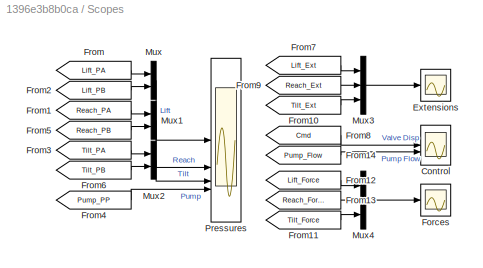
BLOCK [SubSystem] Scopes
BLOCK [Scope] Scopes/Control
  ActiveDisplayYMaximum = 0.01
  ActiveDisplayYMinimum = -0.01
  DataLoggingDecimateData = on
  DataLoggingDecimation = 1
  DataLoggingSaveFormat = Structure With Time
  DataLoggingVariableName = ScopeData1
  Floating = off
  GraphicalSettings = {"GraphicalSettings":{"LegacySettings":true,"Style":{"AxesScalingProperties":{"ScaleAxesLimitsAtStop":false},"Style":{"AxesColor":"[0 0 0]","BackgroundColor":"[0.501960784313725 0.501960784313725 0.501960784313725]","ChannelNames":["",""],"ColorOrder":"[1 0.909803921568627 0.392156862745098;0.149019607843137 0.549019607843137 0.866666666666667;0.96078431372549 0.466666666666667 0.16078431372549;0....<+849ch>
  LayoutDimensionsString = [2 1]
  MultipleDisplayCache = [{"MaxYLimMag":10,"MaxYLimReal":0.01,"MinYLimMag":0,"MinYLimReal":-0.01,"PlotAsMagnitudePhase":false,"ShowGrid":true,"ShowLegend":false,"Title":"%<SignalLabel>","YLabel":""},{"MaxYLimMag":10,"MaxYLimReal":5220,"MinYLimMag":0,"MinYLimReal":5200,"PlotAsMagnitudePhase":false,"ShowGrid":true,"ShowLegend":false,"Title":"%<SignalLabel>","YLabel":""}]
  NumInputPorts = 2
  TimeSpan = 60
  WasSavedAsWebScope = on
  WindowPosition = [661 514 325 264]
BLOCK [Scope] Scopes/Extensions
  ActiveDisplayYMaximum = 2.5
  ActiveDisplayYMinimum = 0
  DataLoggingDecimateData = on
  DataLoggingDecimation = 1
  DataLoggingSaveFormat = Structure With Time
  DataLoggingVariableName = ScopeData2
  Floating = off
  GraphicalSettings = {"GraphicalSettings":{"LegacySettings":true,"Style":{"AxesScalingProperties":{"ScaleAxesLimitsAtStop":false},"Style":{"AxesColor":"[0 0 0]","BackgroundColor":"[0.501960784313725 0.501960784313725 0.501960784313725]","ChannelNames":[""],"ColorOrder":"[1 0.909803921568627 0.392156862745098;0.149019607843137 0.549019607843137 0.866666666666667;0.96078431372549 0.466666666666667 0.16078431372549;0.286...<+667ch>
  MultipleDisplayCache = [{"MaxYLimMag":10,"MaxYLimReal":2.5,"MinYLimMag":0,"MinYLimReal":0,"PlotAsMagnitudePhase":false,"ShowGrid":true,"ShowLegend":false,"Title":"%<SignalLabel>","YLabel":""}]
  NumInputPorts = 1
  TimeSpan = 60
  WasSavedAsWebScope = on
  WindowPosition = [661 516 324 262]
BLOCK [Scope] Scopes/Forces
  ActiveDisplayYMaximum = 2.0E+6
  ActiveDisplayYMinimum = -8.0E+6
  DataLoggingDecimateData = on
  DataLoggingDecimation = 1
  DataLoggingSaveFormat = Structure With Time
  DataLoggingVariableName = ScopeData3
  Floating = off
  GraphicalSettings = {"GraphicalSettings":{"LegacySettings":true,"Style":{"AxesScalingProperties":{"ScaleAxesLimitsAtStop":false},"Style":{"AxesColor":"[0 0 0]","BackgroundColor":"[0.501960784313725 0.501960784313725 0.501960784313725]","ChannelNames":[""],"ColorOrder":"[1 0.909803921568627 0.392156862745098;0.149019607843137 0.549019607843137 0.866666666666667;0.96078431372549 0.466666666666667 0.16078431372549;0.286...<+667ch>
  MultipleDisplayCache = [{"MaxYLimMag":10,"MaxYLimReal":2.0E+6,"MinYLimMag":0,"MinYLimReal":-8.0E+6,"PlotAsMagnitudePhase":false,"ShowGrid":true,"ShowLegend":false,"Title":"%<SignalLabel>","YLabel":""}]
  NumInputPorts = 1
  TimeSpan = 60
  WasSavedAsWebScope = on
  WindowPosition = [661 518 324 260]
BLOCK [From] Scopes/From
  GotoTag = Lift_PA
  TagVisibility = global
BLOCK [From] Scopes/From1
  GotoTag = Reach_PA
  TagVisibility = global
BLOCK [From] Scopes/From10
  GotoTag = Tilt_Ext
  TagVisibility = global
BLOCK [From] Scopes/From11
  GotoTag = Tilt_Force
  TagVisibility = global
BLOCK [From] Scopes/From12
  GotoTag = Lift_Force
  TagVisibility = global
BLOCK [From] Scopes/From13
  GotoTag = Reach_Force
  TagVisibility = global
BLOCK [From] Scopes/From14
  GotoTag = Pump_Flow
  TagVisibility = global
BLOCK [From] Scopes/From2
  GotoTag = Lift_PB
  TagVisibility = global
BLOCK [From] Scopes/From3
  GotoTag = Tilt_PA
  TagVisibility = global
BLOCK [From] Scopes/From4
  GotoTag = Pump_PP
  TagVisibility = global
BLOCK [From] Scopes/From5
  GotoTag = Reach_PB
  TagVisibility = global
BLOCK [From] Scopes/From6
  GotoTag = Tilt_PB
  TagVisibility = global
BLOCK [From] Scopes/From7
  GotoTag = Lift_Ext
  TagVisibility = global
BLOCK [From] Scopes/From8
  GotoTag = Cmd
  TagVisibility = global
BLOCK [From] Scopes/From9
  GotoTag = Reach_Ext
  TagVisibility = global
BLOCK [Mux] Scopes/Mux
  DisplayOption = bar
  Inputs = 2
BLOCK [Mux] Scopes/Mux1
  DisplayOption = bar
  Inputs = 2
BLOCK [Mux] Scopes/Mux2
  DisplayOption = bar
  Inputs = 2
BLOCK [Mux] Scopes/Mux3
  DisplayOption = bar
  Inputs = 3
BLOCK [Mux] Scopes/Mux4
  DisplayOption = bar
  Inputs = 3
BLOCK [Scope] Scopes/Pressures
  ActiveDisplayYMaximum = 3.0E+7
  ActiveDisplayYMinimum = 0
  DataLogging = on
  DataLoggingDecimateData = on
  DataLoggingDecimation = 1
  DataLoggingSaveFormat = Structure With Time
  DataLoggingVariableName = Cyl_Press_DATA
  Floating = off
  GraphicalSettings = {"GraphicalSettings":{"LegacySettings":true,"Style":{"AxesScalingProperties":{"ScaleAxesLimitsAtStop":false},"Style":{"AxesColor":"[0 0 0]","BackgroundColor":"[0.501960784313725 0.501960784313725 0.501960784313725]","ChannelNames":["","","",""],"ColorOrder":"[1 0.909803921568627 0.392156862745098;0.149019607843137 0.549019607843137 0.866666666666667;0.96078431372549 0.466666666666667 0.16078431372...<+1221ch>
  LayoutDimensionsString = [4 1]
  MultipleDisplayCache = [{"MaxYLimMag":10,"MaxYLimReal":3.0E+7,"MinYLimMag":0,"MinYLimReal":0,"PlotAsMagnitudePhase":false,"ShowGrid":true,"ShowLegend":false,"Title":"%<SignalLabel>","YLabel":""},{"MaxYLimMag":10,"MaxYLimReal":2.5E+7,"MinYLimMag":0,"MinYLimReal":0,"PlotAsMagnitudePhase":false,"ShowGrid":true,"ShowLegend":false,"Title":"%<SignalLabel>","YLabel":""},{"MaxYLimMag":10,"MaxYLimReal":2.0E+7,"MinYLimMag":0,"Min...<+297ch>
  NumInputPorts = 4
  TimeSpan = 60
  WasSavedAsWebScope = on
BLOCK [Reference] Upper Angle  REF=simulink/Sources/Repeating
Sequence
  NameLocation = left
  SourceBlock = simulink/Sources/Repeating\nSequence
  SourceType = Repeating table
BLOCK [Concatenate] Vector Concatenate
  NameLocation = top
  NumInputs = 3
ANNOTATION (root): 1. Plot joint angles in arm ( see code ) 2. Plot pressures in actuators ( see code ) 3. Configure Solver: Desktop , Real Time 4. Open Demo Script 5. Explore simulation results using sscexplore 6. Learn more about this example
ANNOTATION (root): Backhoe Arm
LINE Arm/Bucket Assembly/Bucket/Bucket/Pulse Generator:1 -> Arm/Bucket Assembly/Bucket/Bucket/Simulink-PS Converter:1
LINE Arm/Cmd2:1 -> Arm/Reach Actuator:1
LINE Arm/Cmd3:1 -> Arm/Tilt Actuator:1
LINE Arm/Cmd:1 -> Arm/Lift Actuator:1
LINE Arm/Lift Actuator/Cmd:1 -> Arm/Lift Actuator/Lift:1
LINE Arm/Lift Actuator/Lift/Gain:1 -> Arm/Lift Actuator/Lift/Simulink-PS Converter:1
LINE Arm/Lift Actuator/Lift/Lift Cmd:1 -> Arm/Lift Actuator/Lift/Gain:1
LINE Arm/Lift Actuator/Lift/S:1 -> Arm/Lift Actuator/Lift/Lift Cmd:1
LINE Arm/Lift Actuator/Sense Ext/PS-Simulink Converter:1 -> Arm/Lift Actuator/Sense Ext/Goto:1
LINE Arm/Lift Actuator/Sense Force/PS-Simulink Converter:1 -> Arm/Lift Actuator/Sense Force/Goto:1
LINE Arm/Lift Actuator/Sensing PA/PS-Simulink Converter1:1 -> Arm/Lift Actuator/Sensing PA/Goto:1
LINE Arm/Lift Actuator/Sensing PA1/PS-Simulink Converter1:1 -> Arm/Lift Actuator/Sensing PA1/Goto:1
LINE Arm/Measured/Bucket Angle:1 -> Arm/Measured/Vector Concatenate:1
LINE Arm/Measured/Lower Arm Angle:1 -> Arm/Measured/Vector Concatenate:3
LINE Arm/Measured/Upper Arm Angle:1 -> Arm/Measured/Vector Concatenate:2
LINE Arm/Measured/Vector Concatenate:1 -> Arm/Measured/Angles:1
LINE Arm/Measured:1 -> Arm/Meas:1
LINE Arm/Reach Actuator/Cmd:1 -> Arm/Reach Actuator/Reach Cmd:1
LINE Arm/Reach Actuator/Reach Cmd/Gain:1 -> Arm/Reach Actuator/Reach Cmd/Simulink-PS Converter:1
LINE Arm/Reach Actuator/Reach Cmd/Reach Cmd:1 -> Arm/Reach Actuator/Reach Cmd/Gain:1
LINE Arm/Reach Actuator/Reach Cmd/S:1 -> Arm/Reach Actuator/Reach Cmd/Reach Cmd:1
LINE Arm/Reach Actuator/Sense Ext/PS-Simulink Converter:1 -> Arm/Reach Actuator/Sense Ext/Goto:1
LINE Arm/Reach Actuator/Sense Force/PS-Simulink Converter:1 -> Arm/Reach Actuator/Sense Force/Goto:1
LINE Arm/Reach Actuator/Sensing PA/PS-Simulink Converter1:1 -> Arm/Reach Actuator/Sensing PA/Goto:1
LINE Arm/Reach Actuator/Sensing PA1/PS-Simulink Converter1:1 -> Arm/Reach Actuator/Sensing PA1/Goto:1
LINE Arm/Sensing AB/PS-Simulink Converter Upper1:1 -> Arm/Sensing AB/Bucket Angle:1
LINE Arm/Sensing LAM/PS-Simulink Converter Lower:1 -> Arm/Sensing LAM/Lower Angle:1
LINE Arm/Sensing LAU/PS-Simulink Converter Upper:1 -> Arm/Sensing LAU/Upper Arm Angle:1
LINE Arm/Sensing PA2/PS-Simulink Converter1:1 -> Arm/Sensing PA2/Goto:1
LINE Arm/Sensing PA2/PS-Simulink Converter2:1 -> Arm/Sensing PA2/Goto1:1
LINE Arm/Tilt Actuator/Cmd:1 -> Arm/Tilt Actuator/Tilt Cmd:1
LINE Arm/Tilt Actuator/Sense Ext/PS-Simulink Converter:1 -> Arm/Tilt Actuator/Sense Ext/Goto:1
LINE Arm/Tilt Actuator/Sense Force/PS-Simulink Converter:1 -> Arm/Tilt Actuator/Sense Force/Goto:1
LINE Arm/Tilt Actuator/Sensing PA/PS-Simulink Converter1:1 -> Arm/Tilt Actuator/Sensing PA/Goto:1
LINE Arm/Tilt Actuator/Sensing PA1/PS-Simulink Converter1:1 -> Arm/Tilt Actuator/Sensing PA1/Goto:1
LINE Arm/Tilt Actuator/Tilt Cmd/Gain:1 -> Arm/Tilt Actuator/Tilt Cmd/Simulink-PS Converter:1
LINE Arm/Tilt Actuator/Tilt Cmd/S:1 -> Arm/Tilt Actuator/Tilt Cmd/Tilt Cmd:1
LINE Arm/Tilt Actuator/Tilt Cmd/Tilt Cmd:1 -> Arm/Tilt Actuator/Tilt Cmd/Gain:1
NET Arm:1 -> Controller:1, Routing:1
LINE Bucket Angle:1 -> Vector Concatenate:1
NET Controller/Convert Spool Disp:1 -> Controller/Cmd:1, Controller/Goto:1
LINE Controller/Lift Meas:1 -> Controller/PID Controller Lower:2
LINE Controller/Lift Ref:1 -> Controller/PID Controller Lower:1
NET Controller/Meas:1 -> Controller/Lift Meas:1, Controller/Reach Meas:1, Controller/Tilt Meas :1
LINE Controller/PID Controller Bucket:1 -> Controller/Vector Concatenate:1
LINE Controller/PID Controller Lower:1 -> Controller/Vector Concatenate:3
LINE Controller/PID Controller Upper:1 -> Controller/Vector Concatenate:2
LINE Controller/Reach Meas:1 -> Controller/PID Controller Upper:2
LINE Controller/Reach Ref:1 -> Controller/PID Controller Upper:1
NET Controller/Ref:1 -> Controller/Lift Ref:1, Controller/Reach Ref:1, Controller/Tilt Ref:1
LINE Controller/Tilt Meas :1 -> Controller/PID Controller Bucket:2
LINE Controller/Tilt Ref:1 -> Controller/PID Controller Bucket:1
LINE Controller/Vector Concatenate:1 -> Controller/Convert Spool Disp:1
LINE Controller:1 -> Arm:1
LINE Lower Angle:1 -> Vector Concatenate:3
LINE Routing/Demux1:1 -> Routing/Mux2:2
LINE Routing/Demux1:2 -> Routing/Mux1:2
LINE Routing/Demux1:3 -> Routing/Mux:2
LINE Routing/Demux:1 -> Routing/Mux2:1
LINE Routing/Demux:2 -> Routing/Mux1:1
LINE Routing/Demux:3 -> Routing/Mux:1
LINE Routing/From:1 -> Routing/Demux1:1
LINE Routing/Meas:1 -> Routing/Demux:1
LINE Routing/Mux1:1 -> Routing/UArm:1
LINE Routing/Mux2:1 -> Routing/Bucket:1
LINE Routing/Mux:1 -> Routing/LArm:1
LINE Routing:1 -> Angles:1
LINE Routing:2 -> Angles:2
LINE Routing:3 -> Angles:3
LINE Scopes/From10:1 -> Scopes/Mux3:3
LINE Scopes/From11:1 -> Scopes/Mux4:3
LINE Scopes/From12:1 -> Scopes/Mux4:1
LINE Scopes/From13:1 -> Scopes/Mux4:2
LINE Scopes/From14:1 -> Scopes/Control:2
LINE Scopes/From1:1 -> Scopes/Mux1:1
LINE Scopes/From2:1 -> Scopes/Mux:2
LINE Scopes/From3:1 -> Scopes/Mux2:1
LINE Scopes/From4:1 -> Scopes/Pressures:4
LINE Scopes/From5:1 -> Scopes/Mux1:2
LINE Scopes/From6:1 -> Scopes/Mux2:2
LINE Scopes/From7:1 -> Scopes/Mux3:1
LINE Scopes/From8:1 -> Scopes/Control:1
LINE Scopes/From9:1 -> Scopes/Mux3:2
LINE Scopes/From:1 -> Scopes/Mux:1
LINE Scopes/Mux1:1 -> Scopes/Pressures:2
LINE Scopes/Mux2:1 -> Scopes/Pressures:3
LINE Scopes/Mux3:1 -> Scopes/Extensions:1
LINE Scopes/Mux4:1 -> Scopes/Forces:1
LINE Scopes/Mux:1 -> Scopes/Pressures:1
LINE Upper Angle:1 -> Vector Concatenate:2
NET Vector Concatenate:1 -> Controller:2, Goto:1
PLINE Arm/Bucket Assembly/Bucket/Arm Revolute Rotation:LConn1 -- Arm/Bucket Assembly/Bucket/Attachment Frame:RConn2
PLINE Arm/Bucket Assembly/Bucket/Arm Revolute Rotation:RConn1 -- Arm/Bucket Assembly/Bucket/Upper Arm:RConn1
PNET net1: Arm/Bucket Assembly/Bucket/Attachment Frame/Arm Link Pin:RConn1 -- Arm/Bucket Assembly/Bucket/Attachment Frame/Attachment Plates:RConn2 -- Arm/Bucket Assembly/Bucket/Attachment Frame/Upper Arm:RConn1
PLINE Arm/Bucket Assembly/Bucket/Attachment Frame/Attachment Plates:LConn1 -- Arm/Bucket Assembly/Bucket/Attachment Frame/Bucket Attachment Transform:LConn1
PNET net2: Arm/Bucket Assembly/Bucket/Attachment Frame/Attachment Plates:RConn1 -- Arm/Bucket Assembly/Bucket/Attachment Frame/Crank Arm:RConn1 -- Arm/Bucket Assembly/Bucket/Attachment Frame/Crank Link Pin:RConn1
PLINE Arm/Bucket Assembly/Bucket/Attachment Frame/Bucket Attachment Transform:RConn1 -- Arm/Bucket Assembly/Bucket/Attachment Frame/Bucket:RConn1
PLINE Arm/Bucket Assembly/Bucket/Attachment Frame:LConn1 -- Arm/Bucket Assembly/Bucket/Bucket:RConn1
PLINE Arm/Bucket Assembly/Bucket/Attachment Frame:RConn1 -- Arm/Bucket Assembly/Bucket/Crank Revolute Rotation:LConn1
PLINE Arm/Bucket Assembly/Bucket/Bucket/Attachment Frame:RConn1 -- Arm/Bucket Assembly/Bucket/Bucket/Bucket Top:RConn1
PLINE Arm/Bucket Assembly/Bucket/Bucket/Bucket Back/Bucket Back Transform:LConn1 -- Arm/Bucket Assembly/Bucket/Bucket/Bucket Back/Bucket:RConn1
PNET net3: Arm/Bucket Assembly/Bucket/Bucket/Bucket Back/Bucket Back Transform:RConn1 -- Arm/Bucket Assembly/Bucket/Bucket/Bucket Back/Bucket Back:RConn1 -- Arm/Bucket Assembly/Bucket/Bucket/Bucket Back/Teeth:RConn1
PNET net4: Arm/Bucket Assembly/Bucket/Bucket/Bucket Back:LConn1 -- Arm/Bucket Assembly/Bucket/Bucket/General Variable Mass:RConn1 -- Arm/Bucket Assembly/Bucket/Bucket/Teeth:RConn1
PNET net5: Arm/Bucket Assembly/Bucket/Bucket/Bucket Back:RConn1 -- Arm/Bucket Assembly/Bucket/Bucket/Bucket Left Transform:LConn1 -- Arm/Bucket Assembly/Bucket/Bucket/Bucket Right Transform:LConn1 -- Arm/Bucket Assembly/Bucket/Bucket/Bucket Top:LConn1
PLINE Arm/Bucket Assembly/Bucket/Bucket/Bucket Left Transform:RConn1 -- Arm/Bucket Assembly/Bucket/Bucket/Bucket Side Left:RConn1
PLINE Arm/Bucket Assembly/Bucket/Bucket/Bucket Right Transform:RConn1 -- Arm/Bucket Assembly/Bucket/Bucket/Bucket SideRight:RConn1
PLINE Arm/Bucket Assembly/Bucket/Bucket/Bucket Top/Attachment Frame:RConn1 -- Arm/Bucket Assembly/Bucket/Bucket/Bucket Top/Bucket Top Transform:LConn1
PNET net6: Arm/Bucket Assembly/Bucket/Bucket/Bucket Top/Bucket Top Transform:RConn1 -- Arm/Bucket Assembly/Bucket/Bucket/Bucket Top/Bucket Top:RConn1 -- Arm/Bucket Assembly/Bucket/Bucket/Bucket Top/Bucket:RConn1
PLINE Arm/Bucket Assembly/Bucket/Bucket/General Variable Mass:LConn1 -- Arm/Bucket Assembly/Bucket/Bucket/Simulink-PS Converter:RConn1
PNET net7: Arm/Bucket Assembly/Bucket/Bucket/Teeth/Bucket:RConn1 -- Arm/Bucket Assembly/Bucket/Bucket/Teeth/Tooth Transform 1:LConn1 -- Arm/Bucket Assembly/Bucket/Bucket/Teeth/Tooth Transform 2:LConn1 -- Arm/Bucket Assembly/Bucket/Bucket/Teeth/Tooth Transform 3:LConn1 -- Arm/Bucket Assembly/Bucket/Bucket/Teeth/Tooth Transform 4:LConn1 -- Arm/Bucket Assembly/Bucket/Bucket/Teeth/Tooth Transform 5:LConn1
PLINE Arm/Bucket Assembly/Bucket/Bucket/Teeth/Tooth 1:RConn1 -- Arm/Bucket Assembly/Bucket/Bucket/Teeth/Tooth Transform 1:RConn1
PLINE Arm/Bucket Assembly/Bucket/Bucket/Teeth/Tooth 2:RConn1 -- Arm/Bucket Assembly/Bucket/Bucket/Teeth/Tooth Transform 2:RConn1
PLINE Arm/Bucket Assembly/Bucket/Bucket/Teeth/Tooth 3:RConn1 -- Arm/Bucket Assembly/Bucket/Bucket/Teeth/Tooth Transform 3:RConn1
PLINE Arm/Bucket Assembly/Bucket/Bucket/Teeth/Tooth 4:RConn1 -- Arm/Bucket Assembly/Bucket/Bucket/Teeth/Tooth Transform 4:RConn1
PLINE Arm/Bucket Assembly/Bucket/Bucket/Teeth/Tooth 5:RConn1 -- Arm/Bucket Assembly/Bucket/Bucket/Teeth/Tooth Transform 5:RConn1
PLINE Arm/Bucket Assembly/Bucket/Crank Arm:RConn1 -- Arm/Bucket Assembly/Bucket/Crank Revolute Rotation:RConn1
PLINE Arm/Bucket Assembly/Bucket:RConn1 -- Arm/Bucket Assembly/Crank to Bucket:RConn1
PLINE Arm/Bucket Assembly/Bucket:RConn2 -- Arm/Bucket Assembly/UA:RConn1
PLINE Arm/Bucket Assembly/Crank Assembly/Arm Left:RConn1 -- Arm/Bucket Assembly/Crank Assembly/Crank 1 Left:RConn1
PLINE Arm/Bucket Assembly/Crank Assembly/Arm Right:RConn1 -- Arm/Bucket Assembly/Crank Assembly/Crank 1 Right:RConn1
PNET net8: Arm/Bucket Assembly/Crank Assembly/Bucket:RConn1 -- Arm/Bucket Assembly/Crank Assembly/Crank to Bucket Left:RConn1 -- Arm/Bucket Assembly/Crank Assembly/Crank to Bucket Right:RConn1
PLINE Arm/Bucket Assembly/Crank Assembly/Crank 1 Left:LConn1 -- Arm/Bucket Assembly/Crank Assembly/Crank Pin:LConn1
PLINE Arm/Bucket Assembly/Crank Assembly/Crank 1 Right:LConn1 -- Arm/Bucket Assembly/Crank Assembly/Crank Pin:LConn2
PLINE Arm/Bucket Assembly/Crank Assembly/Crank 2 Left:LConn1 -- Arm/Bucket Assembly/Crank Assembly/Revolute Left 2:RConn1
PLINE Arm/Bucket Assembly/Crank Assembly/Crank 2 Left:RConn1 -- Arm/Bucket Assembly/Crank Assembly/Crank to Bucket Left:LConn1
PLINE Arm/Bucket Assembly/Crank Assembly/Crank 2 Right:LConn1 -- Arm/Bucket Assembly/Crank Assembly/Revolute Right 2:RConn1
PLINE Arm/Bucket Assembly/Crank Assembly/Crank 2 Right:RConn1 -- Arm/Bucket Assembly/Crank Assembly/Crank to Bucket Right:LConn1
PLINE Arm/Bucket Assembly/Crank Assembly/Crank Pin/Crank 1 Left:RConn1 -- Arm/Bucket Assembly/Crank Assembly/Crank Pin/Pin 2 Left Transform:RConn1
PLINE Arm/Bucket Assembly/Crank Assembly/Crank Pin/Crank 1 Right:RConn1 -- Arm/Bucket Assembly/Crank Assembly/Crank Pin/Pin 2 Right Transform:RConn1
PLINE Arm/Bucket Assembly/Crank Assembly/Crank Pin/Crank 2 Left:RConn1 -- Arm/Bucket Assembly/Crank Assembly/Crank Pin/Pin 2 to Crank 2 Left:RConn1
PLINE Arm/Bucket Assembly/Crank Assembly/Crank Pin/Crank 2 Right:RConn1 -- Arm/Bucket Assembly/Crank Assembly/Crank Pin/Pin 2 to Crank 2 Right:RConn1
PNET net9: Arm/Bucket Assembly/Crank Assembly/Crank Pin/Pin 2 Left Transform:LConn1 -- Arm/Bucket Assembly/Crank Assembly/Crank Pin/Pin 2 Right Transform:LConn1 -- Arm/Bucket Assembly/Crank Assembly/Crank Pin/Pin 2 to Crank 2 Left:LConn1 -- Arm/Bucket Assembly/Crank Assembly/Crank Pin/Pin 2 to Crank 2 Right:LConn1 -- Arm/Bucket Assembly/Crank Assembly/Crank Pin/Pin2:RConn1 -- Arm/Bucket Assembly/Crank Assembly/Crank Pin/Piston Attachment:RConn1
PLINE Arm/Bucket Assembly/Crank Assembly/Crank Pin:LConn3 -- Arm/Bucket Assembly/Crank Assembly/Piston:RConn1
PLINE Arm/Bucket Assembly/Crank Assembly/Crank Pin:RConn1 -- Arm/Bucket Assembly/Crank Assembly/Revolute Left 2:LConn1
PLINE Arm/Bucket Assembly/Crank Assembly/Crank Pin:RConn2 -- Arm/Bucket Assembly/Crank Assembly/Revolute Right 2:LConn1
PLINE Arm/Bucket Assembly/Crank Assembly:LConn1 -- Arm/Bucket Assembly/UAL:RConn1
PLINE Arm/Bucket Assembly/Crank Assembly:LConn2 -- Arm/Bucket Assembly/UAR:RConn1
PLINE Arm/Bucket Assembly/Crank Assembly:RConn1 -- Arm/Bucket Assembly/TAct:RConn1
PLINE Arm/Bucket Assembly/Crank Assembly:RConn2 -- Arm/Bucket Assembly/Crank to Bucket:LConn1
PLINE Arm/Bucket Assembly:LConn1 -- Arm/UArm to CrankL:RConn1
PLINE Arm/Bucket Assembly:LConn2 -- Arm/UArm to CrankR:RConn1
PLINE Arm/Bucket Assembly:LConn3 -- Arm/UArm to Bucket:RConn1
PLINE Arm/Bucket Assembly:RConn1 -- Arm/Tilt Actuator:RConn1
PLINE Arm/Fixed- Displacement Pump:LConn1 -- Arm/Sensing PA2:LConn1
PLINE Arm/Fixed- Displacement Pump:RConn1 -- Arm/Ideal Angular Velocity Source:LConn1
PLINE Arm/Fixed- Displacement Pump:RConn2 -- Arm/Mechanical Rotational Reference1:LConn1
PNET net10: Arm/Fixed- Displacement Pump:RConn3 -- Arm/Hydraulic Fluid:RConn1 -- Arm/Hydraulic Reference:LConn1 -- Arm/Lift Actuator:LConn1 -- Arm/Pressure Relief Valve:RConn1 -- Arm/Reach Actuator:LConn1 -- Arm/Tilt Actuator:LConn1
PLINE Arm/Hub to LArm:LConn1 -- Arm/Mounting Hub:RConn1
PLINE Arm/Hub to LArm:RConn1 -- Arm/Lower Arm :LConn1
PLINE Arm/Hub to LArm:RConn2 -- Arm/Sensing LAM:LConn1
PLINE Arm/Ideal Angular Velocity Source:RConn1 -- Arm/Pump Speed:RConn1
PLINE Arm/Ideal Angular Velocity Source:RConn2 -- Arm/Mechanical Rotational Reference:LConn1
PLINE Arm/LArm to UArm:LConn1 -- Arm/Lower Arm :RConn1
PLINE Arm/LArm to UArm:RConn1 -- Arm/Upper Arm:LConn1
PLINE Arm/LArm to UArm:RConn2 -- Arm/Sensing LAU:LConn1
PNET net11: Arm/Lift Actuator/Cylinder/B:RConn1 -- Arm/Lift Actuator/Cylinder/Base to Cylinder Transform:LConn1 -- Arm/Lift Actuator/Cylinder/Cylinder:RConn1
PLINE Arm/Lift Actuator/Cylinder/Base to Cylinder Transform:RConn1 -- Arm/Lift Actuator/Cylinder/Single Bracket:LConn1
PLINE Arm/Lift Actuator/Cylinder/F:RConn1 -- Arm/Lift Actuator/Cylinder/Single Bracket:RConn1
PLINE Arm/Lift Actuator/Cylinder:LConn1 -- Arm/Lift Actuator/Prismatic  Joint:LConn1
PLINE Arm/Lift Actuator/Cylinder:RConn1 -- Arm/Lift Actuator/Hub to LActuator:RConn1
PLINE Arm/Lift Actuator/Directional Valve:LConn1 -- Arm/Lift Actuator/Lift:RConn1
PNET net12: Arm/Lift Actuator/Directional Valve:LConn2 -- Arm/Lift Actuator/Hydraulic Cylinder:LConn2 -- Arm/Lift Actuator/Sensing PA:LConn1
PNET net13: Arm/Lift Actuator/Directional Valve:LConn3 -- Arm/Lift Actuator/Hydraulic Cylinder:RConn3 -- Arm/Lift Actuator/Sensing PA1:LConn1
PLINE Arm/Lift Actuator/Directional Valve:RConn1 -- Arm/Lift Actuator/P:RConn1
PLINE Arm/Lift Actuator/Directional Valve:RConn2 -- Arm/Lift Actuator/T:RConn1
PNET net14: Arm/Lift Actuator/Friction:LConn1 -- Arm/Lift Actuator/Hydraulic Cylinder:RConn2 -- Arm/Lift Actuator/Translational Multibody Interface:RConn2
PNET net15: Arm/Lift Actuator/Friction:RConn1 -- Arm/Lift Actuator/Hydraulic Cylinder:LConn1 -- Arm/Lift Actuator/Mechanical Translational Reference:LConn1 -- Arm/Lift Actuator/Translational Multibody Interface:LConn2
PLINE Arm/Lift Actuator/H:RConn1 -- Arm/Lift Actuator/Hub to LActuator:LConn1
PNET net16: Arm/Lift Actuator/Hydraulic Cylinder:RConn1 -- Arm/Lift Actuator/Prismatic  Joint:RConn2 -- Arm/Lift Actuator/Sense Ext:LConn1
PLINE Arm/Lift Actuator/LA:RConn1 -- Arm/Lift Actuator/LArm to LActuator:RConn1
PLINE Arm/Lift Actuator/LArm to LActuator:LConn1 -- Arm/Lift Actuator/Piston:RConn1
PLINE Arm/Lift Actuator/Lift/PS:RConn1 -- Arm/Lift Actuator/Lift/Simulink-PS Converter:RConn1
PNET net17: Arm/Lift Actuator/Piston/B:RConn1 -- Arm/Lift Actuator/Piston/Piston to Head Transform:LConn1 -- Arm/Lift Actuator/Piston/Piston:RConn1
PLINE Arm/Lift Actuator/Piston/F:RConn1 -- Arm/Lift Actuator/Piston/Single Bracket:RConn1
PLINE Arm/Lift Actuator/Piston/Piston to Head Transform:RConn1 -- Arm/Lift Actuator/Piston/Single Bracket:LConn1
PLINE Arm/Lift Actuator/Piston:LConn1 -- Arm/Lift Actuator/Prismatic  Joint:RConn1
PNET net18: Arm/Lift Actuator/Prismatic  Joint:LConn2 -- Arm/Lift Actuator/Sense Force:RConn1 -- Arm/Lift Actuator/Translational Multibody Interface:LConn1
PLINE Arm/Lift Actuator/Prismatic  Joint:RConn3 -- Arm/Lift Actuator/Translational Multibody Interface:RConn1
PLINE Arm/Lift Actuator/Sense Ext/Conn1:RConn1 -- Arm/Lift Actuator/Sense Ext/PS-Simulink Converter:LConn1
PLINE Arm/Lift Actuator/Sense Force/PS-Simulink Converter:LConn1 -- Arm/Lift Actuator/Sense Force/S:RConn1
PLINE Arm/Lift Actuator/Sensing PA/A:RConn1 -- Arm/Lift Actuator/Sensing PA/Hydraulic Pressure Sensor:LConn1
PLINE Arm/Lift Actuator/Sensing PA/Hydraulic Pressure Sensor:RConn1 -- Arm/Lift Actuator/Sensing PA/Hydraulic Reference:LConn1
PLINE Arm/Lift Actuator/Sensing PA/Hydraulic Pressure Sensor:RConn2 -- Arm/Lift Actuator/Sensing PA/PS-Simulink Converter1:LConn1
PLINE Arm/Lift Actuator/Sensing PA1/A:RConn1 -- Arm/Lift Actuator/Sensing PA1/Hydraulic Pressure Sensor:LConn1
PLINE Arm/Lift Actuator/Sensing PA1/Hydraulic Pressure Sensor:RConn1 -- Arm/Lift Actuator/Sensing PA1/Hydraulic Reference1:LConn1
PLINE Arm/Lift Actuator/Sensing PA1/Hydraulic Pressure Sensor:RConn2 -- Arm/Lift Actuator/Sensing PA1/PS-Simulink Converter1:LConn1
PNET net19: Arm/Lift Actuator:LConn2 -- Arm/Pressure Relief Valve:LConn1 -- Arm/Reach Actuator:LConn2 -- Arm/Sensing PA2:RConn1 -- Arm/Tilt Actuator:LConn2
PLINE Arm/Lift Actuator:RConn1 -- Arm/Lower Arm :LConn2
PLINE Arm/Lift Actuator:RConn2 -- Arm/Mounting Hub:RConn2
PNET net20: Arm/Lower Arm /Angle Rotation:LConn1 -- Arm/Lower Arm /Front Bracket:RConn1 -- Arm/Lower Arm /Pin:RConn1
PLINE Arm/Lower Arm /Angle Rotation:RConn1 -- Arm/Lower Arm /UA:RConn1
PLINE Arm/Lower Arm /Bracket Double Hole:LConn1 -- Arm/Lower Arm /Lower Arm:LConn1
PNET net21: Arm/Lower Arm /Bracket Double Hole:RConn1 -- Arm/Lower Arm /Pin2:RConn1 -- Arm/Lower Arm /RAct:RConn1
PNET net22: Arm/Lower Arm /Bracket Double Hole:RConn2 -- Arm/Lower Arm /LAct:RConn1 -- Arm/Lower Arm /Pin1:RConn1
PLINE Arm/Lower Arm /Front Bracket:LConn1 -- Arm/Lower Arm /Lower Arm:LConn2
PLINE Arm/Lower Arm /H:RConn1 -- Arm/Lower Arm /Rear Bracket:RConn1
PNET net23: Arm/Lower Arm /Lower Arm/Bar:RConn1 -- Arm/Lower Arm /Lower Arm/Front Bracket Transform:LConn1 -- Arm/Lower Arm /Lower Arm/Rear Bracket Transform:LConn1 -- Arm/Lower Arm /Lower Arm/Upper Bracket Transform:LConn1
PLINE Arm/Lower Arm /Lower Arm/Front Bracket Transform:RConn1 -- Arm/Lower Arm /Lower Arm/Front Bracket:RConn1
PLINE Arm/Lower Arm /Lower Arm/Rear Bracket Transform:RConn1 -- Arm/Lower Arm /Lower Arm/Rear Bracket:RConn1
PLINE Arm/Lower Arm /Lower Arm/Upper Bracket Transform:RConn1 -- Arm/Lower Arm /Lower Arm/Upper Bracket:RConn1
PLINE Arm/Lower Arm /Lower Arm:RConn1 -- Arm/Lower Arm /Rear Bracket:LConn1
PLINE Arm/Lower Arm :RConn2 -- Arm/Reach Actuator:RConn2
PNET net24: Arm/Mech Config:RConn1 -- Arm/Mounting Hub:LConn1 -- Arm/Solver Config:RConn1 -- Arm/World Frame:RConn1
PLINE Arm/Mounting Hub/Alignment:LConn1 -- Arm/Mounting Hub/B:RConn1
PLINE Arm/Mounting Hub/Alignment:RConn1 -- Arm/Mounting Hub/Single Bracket:RConn1
PLINE Arm/Mounting Hub/Angle Realignment:LConn1 -- Arm/Mounting Hub/Plates:LConn1
PLINE Arm/Mounting Hub/Angle Realignment:RConn1 -- Arm/Mounting Hub/LArm:RConn1
PNET net25: Arm/Mounting Hub/Attachment Arm Left:RConn1 -- Arm/Mounting Hub/Bracket Transform Left:LConn1 -- Arm/Mounting Hub/Plates:LConn3
PNET net26: Arm/Mounting Hub/Attachment Arm Right:RConn1 -- Arm/Mounting Hub/Bracket Transform Right:LConn1 -- Arm/Mounting Hub/Plates:RConn2
PLINE Arm/Mounting Hub/Bracket Left:LConn1 -- Arm/Mounting Hub/Bracket Transform Left:RConn1
PLINE Arm/Mounting Hub/Bracket Left:RConn1 -- Arm/Mounting Hub/Left Pin:RConn1
PLINE Arm/Mounting Hub/Bracket Right:LConn1 -- Arm/Mounting Hub/Bracket Transform Right:RConn1
PLINE Arm/Mounting Hub/Bracket Right:RConn1 -- Arm/Mounting Hub/Right Pin:RConn1
PLINE Arm/Mounting Hub/LAct:RConn1 -- Arm/Mounting Hub/Plates:LConn2
PLINE Arm/Mounting Hub/Plates/Attachment Arm Left:RConn1 -- Arm/Mounting Hub/Plates/Attachment Arm Transform Left:RConn1
PLINE Arm/Mounting Hub/Plates/Attachment Arm Right:RConn1 -- Arm/Mounting Hub/Plates/Attachment Arm Transform Right:RConn1
PNET net27: Arm/Mounting Hub/Plates/Attachment Arm Transform Left:LConn1 -- Arm/Mounting Hub/Plates/Left Plate:RConn1 -- Arm/Mounting Hub/Plates/Pin 2 Transform:LConn1 -- Arm/Mounting Hub/Plates/Plate-to-Bracket Transform:LConn1 -- Arm/Mounting Hub/Plates/Plate-to-Plate Transform:LConn1
PNET net28: Arm/Mounting Hub/Plates/Attachment Arm Transform Right:LConn1 -- Arm/Mounting Hub/Plates/Pin 1 Transform:LConn1 -- Arm/Mounting Hub/Plates/Plate-to-Plate Transform:RConn1 -- Arm/Mounting Hub/Plates/Right Plate:RConn1
PLINE Arm/Mounting Hub/Plates/Bracket:RConn1 -- Arm/Mounting Hub/Plates/Plate-to-Bracket Transform:RConn1
PLINE Arm/Mounting Hub/Plates/Cylinder Base [Lower Joint]:RConn1 -- Arm/Mounting Hub/Plates/Cylinder Transform:RConn1
PNET net29: Arm/Mounting Hub/Plates/Cylinder Transform:LConn1 -- Arm/Mounting Hub/Plates/Pin 2 Transform:RConn1 -- Arm/Mounting Hub/Plates/Pin 2:RConn1
PNET net30: Arm/Mounting Hub/Plates/Lower Arm:RConn1 -- Arm/Mounting Hub/Plates/Pin 1 Transform:RConn1 -- Arm/Mounting Hub/Plates/Pin 1:RConn1
PLINE Arm/Mounting Hub/Plates:RConn1 -- Arm/Mounting Hub/Single Bracket:LConn1
PNET net31: Arm/Reach Actuator/Cylinder/B:RConn1 -- Arm/Reach Actuator/Cylinder/Base to Cylinder Transform:LConn1 -- Arm/Reach Actuator/Cylinder/Cylinder:RConn1
PLINE Arm/Reach Actuator/Cylinder/Base to Cylinder Transform:RConn1 -- Arm/Reach Actuator/Cylinder/Single Bracket:LConn1
PLINE Arm/Reach Actuator/Cylinder/F:RConn1 -- Arm/Reach Actuator/Cylinder/Single Bracket:RConn1
PLINE Arm/Reach Actuator/Cylinder:LConn1 -- Arm/Reach Actuator/Prismatic  Joint:LConn1
PLINE Arm/Reach Actuator/Cylinder:RConn1 -- Arm/Reach Actuator/LArm to RActuator:RConn1
PLINE Arm/Reach Actuator/Directional Valve:LConn1 -- Arm/Reach Actuator/Reach Cmd:RConn1
PNET net32: Arm/Reach Actuator/Directional Valve:LConn2 -- Arm/Reach Actuator/Hydraulic Cylinder:LConn2 -- Arm/Reach Actuator/Sensing PA:LConn1
PNET net33: Arm/Reach Actuator/Directional Valve:LConn3 -- Arm/Reach Actuator/Hydraulic Cylinder:RConn3 -- Arm/Reach Actuator/Sensing PA1:LConn1
PLINE Arm/Reach Actuator/Directional Valve:RConn1 -- Arm/Reach Actuator/P:RConn1
PLINE Arm/Reach Actuator/Directional Valve:RConn2 -- Arm/Reach Actuator/T:RConn1
PNET net34: Arm/Reach Actuator/Friction:LConn1 -- Arm/Reach Actuator/Hydraulic Cylinder:RConn2 -- Arm/Reach Actuator/Translational Multibody Interface:RConn2
PNET net35: Arm/Reach Actuator/Friction:RConn1 -- Arm/Reach Actuator/Hydraulic Cylinder:LConn1 -- Arm/Reach Actuator/Mechanical Translational Reference:LConn1 -- Arm/Reach Actuator/Translational Multibody Interface:LConn2
PLINE Arm/Reach Actuator/H:RConn1 -- Arm/Reach Actuator/LArm to RActuator:LConn1
PNET net36: Arm/Reach Actuator/Hydraulic Cylinder:RConn1 -- Arm/Reach Actuator/Prismatic  Joint:RConn2 -- Arm/Reach Actuator/Sense Ext:LConn1
PNET net37: Arm/Reach Actuator/Piston/B:RConn1 -- Arm/Reach Actuator/Piston/Piston to Head Transform:LConn1 -- Arm/Reach Actuator/Piston/Piston:RConn1
PLINE Arm/Reach Actuator/Piston/F:RConn1 -- Arm/Reach Actuator/Piston/Single Bracket:RConn1
PLINE Arm/Reach Actuator/Piston/Piston to Head Transform:RConn1 -- Arm/Reach Actuator/Piston/Single Bracket:LConn1
PLINE Arm/Reach Actuator/Piston:LConn1 -- Arm/Reach Actuator/Prismatic  Joint:RConn1
PLINE Arm/Reach Actuator/Piston:RConn1 -- Arm/Reach Actuator/UArm to RActuator:LConn1
PNET net38: Arm/Reach Actuator/Prismatic  Joint:LConn2 -- Arm/Reach Actuator/Sense Force:RConn1 -- Arm/Reach Actuator/Translational Multibody Interface:LConn1
PLINE Arm/Reach Actuator/Prismatic  Joint:RConn3 -- Arm/Reach Actuator/Translational Multibody Interface:RConn1
PLINE Arm/Reach Actuator/Reach Cmd/PS:RConn1 -- Arm/Reach Actuator/Reach Cmd/Simulink-PS Converter:RConn1
PLINE Arm/Reach Actuator/Sense Ext/PS-Simulink Converter:LConn1 -- Arm/Reach Actuator/Sense Ext/S:RConn1
PLINE Arm/Reach Actuator/Sense Force/PS-Simulink Converter:LConn1 -- Arm/Reach Actuator/Sense Force/S:RConn1
PLINE Arm/Reach Actuator/Sensing PA/A:RConn1 -- Arm/Reach Actuator/Sensing PA/Hydraulic Pressure Sensor:LConn1
PLINE Arm/Reach Actuator/Sensing PA/Hydraulic Pressure Sensor:RConn1 -- Arm/Reach Actuator/Sensing PA/Hydraulic Reference:LConn1
PLINE Arm/Reach Actuator/Sensing PA/Hydraulic Pressure Sensor:RConn2 -- Arm/Reach Actuator/Sensing PA/PS-Simulink Converter1:LConn1
PLINE Arm/Reach Actuator/Sensing PA1/A:RConn1 -- Arm/Reach Actuator/Sensing PA1/Hydraulic Pressure Sensor:LConn1
PLINE Arm/Reach Actuator/Sensing PA1/Hydraulic Pressure Sensor:RConn1 -- Arm/Reach Actuator/Sensing PA1/Hydraulic Reference1:LConn1
PLINE Arm/Reach Actuator/Sensing PA1/Hydraulic Pressure Sensor:RConn2 -- Arm/Reach Actuator/Sensing PA1/PS-Simulink Converter1:LConn1
PLINE Arm/Reach Actuator/UA:RConn1 -- Arm/Reach Actuator/UArm to RActuator:RConn1
PLINE Arm/Reach Actuator:RConn1 -- Arm/Upper Arm:LConn2
PLINE Arm/Sensing AB/Conn1:RConn1 -- Arm/Sensing AB/PS-Simulink Converter Upper1:LConn1
PLINE Arm/Sensing AB:LConn1 -- Arm/UArm to Bucket:RConn2
PLINE Arm/Sensing LAM/Conn1:RConn1 -- Arm/Sensing LAM/PS-Simulink Converter Lower:LConn1
PLINE Arm/Sensing LAU/Conn1:RConn1 -- Arm/Sensing LAU/PS-Simulink Converter Upper:LConn1
PNET net39: Arm/Sensing PA2/A:RConn1 -- Arm/Sensing PA2/Hydraulic Flow Rate Sensor:LConn1 -- Arm/Sensing PA2/Hydraulic Pressure Sensor:LConn1
PLINE Arm/Sensing PA2/B:RConn1 -- Arm/Sensing PA2/Hydraulic Flow Rate Sensor:RConn3
PLINE Arm/Sensing PA2/Hydraulic Flow Rate Sensor/A:RConn1 -- Arm/Sensing PA2/Hydraulic Flow Rate Sensor/Hydraulic Flow Rate Sensor:LConn1
PLINE Arm/Sensing PA2/Hydraulic Flow Rate Sensor/B:RConn1 -- Arm/Sensing PA2/Hydraulic Flow Rate Sensor/Hydraulic Flow Rate Sensor:RConn1
PLINE Arm/Sensing PA2/Hydraulic Flow Rate Sensor/Hydraulic Flow Rate Sensor:RConn2 -- Arm/Sensing PA2/Hydraulic Flow Rate Sensor/M:RConn1
PLINE Arm/Sensing PA2/Hydraulic Flow Rate Sensor/Hydraulic Flow Rate Sensor:RConn3 -- Arm/Sensing PA2/Hydraulic Flow Rate Sensor/V:RConn1
PLINE Arm/Sensing PA2/Hydraulic Flow Rate Sensor:RConn1 -- Arm/Sensing PA2/PS-Simulink Converter2:LConn1
PLINE Arm/Sensing PA2/Hydraulic Pressure Sensor:RConn1 -- Arm/Sensing PA2/Hydraulic Reference1:LConn1
PLINE Arm/Sensing PA2/Hydraulic Pressure Sensor:RConn2 -- Arm/Sensing PA2/PS-Simulink Converter1:LConn1
PLINE Arm/Tilt Actuator/Cr:RConn1 -- Arm/Tilt Actuator/Crank to TActuator:RConn1
PLINE Arm/Tilt Actuator/Crank to TActuator:LConn1 -- Arm/Tilt Actuator/Piston:RConn1
PNET net40: Arm/Tilt Actuator/Cylinder/B:RConn1 -- Arm/Tilt Actuator/Cylinder/Base to Cylinder Transform:LConn1 -- Arm/Tilt Actuator/Cylinder/Cylinder:RConn1
PLINE Arm/Tilt Actuator/Cylinder/Base to Cylinder Transform:RConn1 -- Arm/Tilt Actuator/Cylinder/Single Bracket:LConn1
PLINE Arm/Tilt Actuator/Cylinder/F:RConn1 -- Arm/Tilt Actuator/Cylinder/Single Bracket:RConn1
PLINE Arm/Tilt Actuator/Cylinder:LConn1 -- Arm/Tilt Actuator/Prismatic  Joint:LConn1
PLINE Arm/Tilt Actuator/Cylinder:RConn1 -- Arm/Tilt Actuator/UA:RConn1
PLINE Arm/Tilt Actuator/Directional Valve:LConn1 -- Arm/Tilt Actuator/Tilt Cmd:RConn1
PNET net41: Arm/Tilt Actuator/Directional Valve:LConn2 -- Arm/Tilt Actuator/Hydraulic Cylinder:LConn2 -- Arm/Tilt Actuator/Sensing PA:LConn1
PNET net42: Arm/Tilt Actuator/Directional Valve:LConn3 -- Arm/Tilt Actuator/Hydraulic Cylinder:RConn3 -- Arm/Tilt Actuator/Sensing PA1:LConn1
PLINE Arm/Tilt Actuator/Directional Valve:RConn1 -- Arm/Tilt Actuator/P:RConn1
PLINE Arm/Tilt Actuator/Directional Valve:RConn2 -- Arm/Tilt Actuator/T:RConn1
PNET net43: Arm/Tilt Actuator/Friction:LConn1 -- Arm/Tilt Actuator/Hydraulic Cylinder:RConn2 -- Arm/Tilt Actuator/Translational Multibody Interface:RConn2
PNET net44: Arm/Tilt Actuator/Friction:RConn1 -- Arm/Tilt Actuator/Hydraulic Cylinder:LConn1 -- Arm/Tilt Actuator/Mechanical Translational Reference:LConn1 -- Arm/Tilt Actuator/Translational Multibody Interface:LConn2
PNET net45: Arm/Tilt Actuator/Hydraulic Cylinder:RConn1 -- Arm/Tilt Actuator/Prismatic  Joint:RConn2 -- Arm/Tilt Actuator/Sense Ext:LConn1
PNET net46: Arm/Tilt Actuator/Piston/B:RConn1 -- Arm/Tilt Actuator/Piston/Piston to Head Transform:LConn1 -- Arm/Tilt Actuator/Piston/Piston:RConn1
PLINE Arm/Tilt Actuator/Piston/F:RConn1 -- Arm/Tilt Actuator/Piston/Single Bracket:RConn1
PLINE Arm/Tilt Actuator/Piston/Piston to Head Transform:RConn1 -- Arm/Tilt Actuator/Piston/Single Bracket:LConn1
PLINE Arm/Tilt Actuator/Piston:LConn1 -- Arm/Tilt Actuator/Prismatic  Joint:RConn1
PNET net47: Arm/Tilt Actuator/Prismatic  Joint:LConn2 -- Arm/Tilt Actuator/Sense Force:RConn1 -- Arm/Tilt Actuator/Translational Multibody Interface:LConn1
PLINE Arm/Tilt Actuator/Prismatic  Joint:RConn3 -- Arm/Tilt Actuator/Translational Multibody Interface:RConn1
PLINE Arm/Tilt Actuator/Sense Ext/PS-Simulink Converter:LConn1 -- Arm/Tilt Actuator/Sense Ext/S:RConn1
PLINE Arm/Tilt Actuator/Sense Force/PS-Simulink Converter:LConn1 -- Arm/Tilt Actuator/Sense Force/S:RConn1
PLINE Arm/Tilt Actuator/Sensing PA/A:RConn1 -- Arm/Tilt Actuator/Sensing PA/Hydraulic Pressure Sensor:LConn1
PLINE Arm/Tilt Actuator/Sensing PA/Hydraulic Pressure Sensor:RConn1 -- Arm/Tilt Actuator/Sensing PA/Hydraulic Reference:LConn1
PLINE Arm/Tilt Actuator/Sensing PA/Hydraulic Pressure Sensor:RConn2 -- Arm/Tilt Actuator/Sensing PA/PS-Simulink Converter1:LConn1
PLINE Arm/Tilt Actuator/Sensing PA1/A:RConn1 -- Arm/Tilt Actuator/Sensing PA1/Hydraulic Pressure Sensor:LConn1
PLINE Arm/Tilt Actuator/Sensing PA1/Hydraulic Pressure Sensor:RConn1 -- Arm/Tilt Actuator/Sensing PA1/Hydraulic Reference1:LConn1
PLINE Arm/Tilt Actuator/Sensing PA1/Hydraulic Pressure Sensor:RConn2 -- Arm/Tilt Actuator/Sensing PA1/PS-Simulink Converter1:LConn1
PLINE Arm/Tilt Actuator/Tilt Cmd/PS:RConn1 -- Arm/Tilt Actuator/Tilt Cmd/Simulink-PS Converter:RConn1
PLINE Arm/Tilt Actuator:RConn2 -- Arm/UArm to TActuator:RConn1
PLINE Arm/UArm to Bucket:LConn1 -- Arm/Upper Arm:RConn3
PLINE Arm/UArm to CrankL:LConn1 -- Arm/Upper Arm:RConn1
PLINE Arm/UArm to CrankR:LConn1 -- Arm/Upper Arm:RConn2
PLINE Arm/UArm to TActuator:LConn1 -- Arm/Upper Arm:RConn4
PLINE Arm/Upper Arm/Angle Realignment:LConn1 -- Arm/Upper Arm/Front Bracket:RConn1
PLINE Arm/Upper Arm/Angle Realignment:RConn1 -- Arm/Upper Arm/B:RConn1
PLINE Arm/Upper Arm/CrL:RConn1 -- Arm/Upper Arm/Left Crank Pin:LConn1
PLINE Arm/Upper Arm/CrR:RConn1 -- Arm/Upper Arm/Right Crank Pin:LConn1
PNET net48: Arm/Upper Arm/Cylinder Base Pin:RConn1 -- Arm/Upper Arm/TAct:RConn1 -- Arm/Upper Arm/Upper Bracket:RConn1
PLINE Arm/Upper Arm/Front Bracket:LConn1 -- Arm/Upper Arm/Upper Arm:RConn1
PLINE Arm/Upper Arm/LA:RConn1 -- Arm/Upper Arm/Lower Bracket:RConn1
PLINE Arm/Upper Arm/Left Crank Pin:RConn1 -- Arm/Upper Arm/Upper Arm:RConn2
PLINE Arm/Upper Arm/Lower Bracket:LConn1 -- Arm/Upper Arm/Upper Arm:LConn3
PNET net49: Arm/Upper Arm/Piston Head Pin:RConn1 -- Arm/Upper Arm/RAct:RConn1 -- Arm/Upper Arm/Rear Bracket:RConn1
PLINE Arm/Upper Arm/Rear Bracket Transform:LConn1 -- Arm/Upper Arm/Upper Arm:LConn2
PLINE Arm/Upper Arm/Rear Bracket Transform:RConn1 -- Arm/Upper Arm/Rear Bracket:LConn1
PLINE Arm/Upper Arm/Right Crank Pin:RConn1 -- Arm/Upper Arm/Upper Arm:RConn3
PNET net50: Arm/Upper Arm/Upper Arm/Bar:RConn1 -- Arm/Upper Arm/Upper Arm/Crank Link Transform Left:LConn1 -- Arm/Upper Arm/Upper Arm/Crank Link Transform Right:LConn1 -- Arm/Upper Arm/Upper Arm/Front Bracket Transform:LConn1 -- Arm/Upper Arm/Upper Arm/Lower Bracket Transform:LConn1 -- Arm/Upper Arm/Upper Arm/Piston Bracket Transform:LConn1 -- Arm/Upper Arm/Upper Arm/Rear Bracket Transform:LConn1
PLINE Arm/Upper Arm/Upper Arm/Bucket:RConn1 -- Arm/Upper Arm/Upper Arm/Front Bracket Transform:RConn1
PLINE Arm/Upper Arm/Upper Arm/Crank Left:RConn1 -- Arm/Upper Arm/Upper Arm/Crank Link Transform Left:RConn1
PLINE Arm/Upper Arm/Upper Arm/Crank Link Transform Right:RConn1 -- Arm/Upper Arm/Upper Arm/Crank Right:RConn1
PLINE Arm/Upper Arm/Upper Arm/Cylinder Base:RConn1 -- Arm/Upper Arm/Upper Arm/Piston Bracket Transform:RConn1
PLINE Arm/Upper Arm/Upper Arm/Lower Arm:RConn1 -- Arm/Upper Arm/Upper Arm/Lower Bracket Transform:RConn1
PLINE Arm/Upper Arm/Upper Arm/Piston Head:RConn1 -- Arm/Upper Arm/Upper Arm/Rear Bracket Transform:RConn1
PLINE Arm/Upper Arm/Upper Arm:LConn1 -- Arm/Upper Arm/Upper Bracket:LConn1
note: NET lines group one-source signal fan-out (src -> all destinations, sorted); 1:1 wires keep LINE; PNET lines group multi-terminal physical nets as a canonical sorted terminal list (undirected conserving connections); 2-terminal nets keep the pairwise PLINE form
